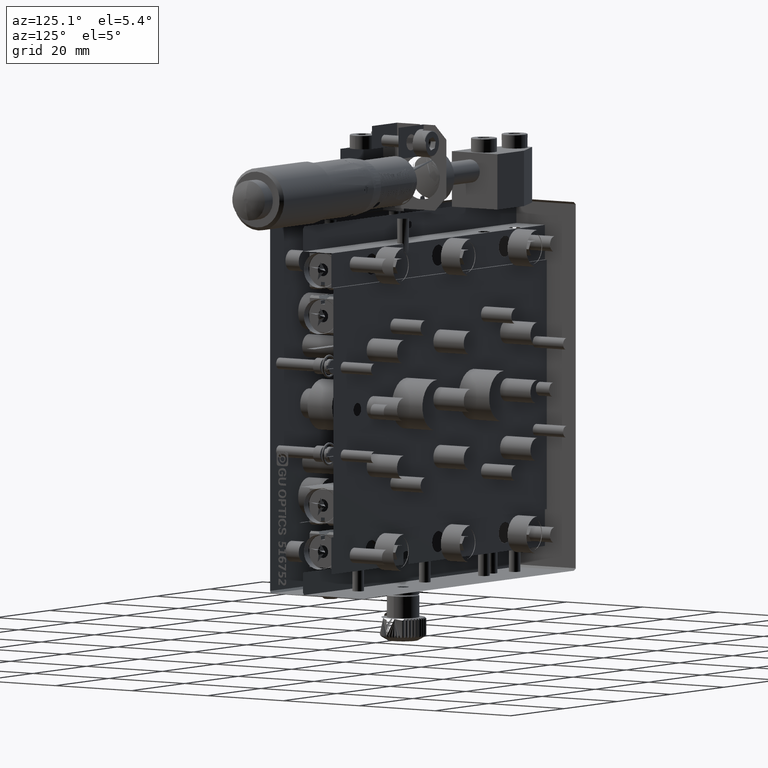
[diagram: clean part render]
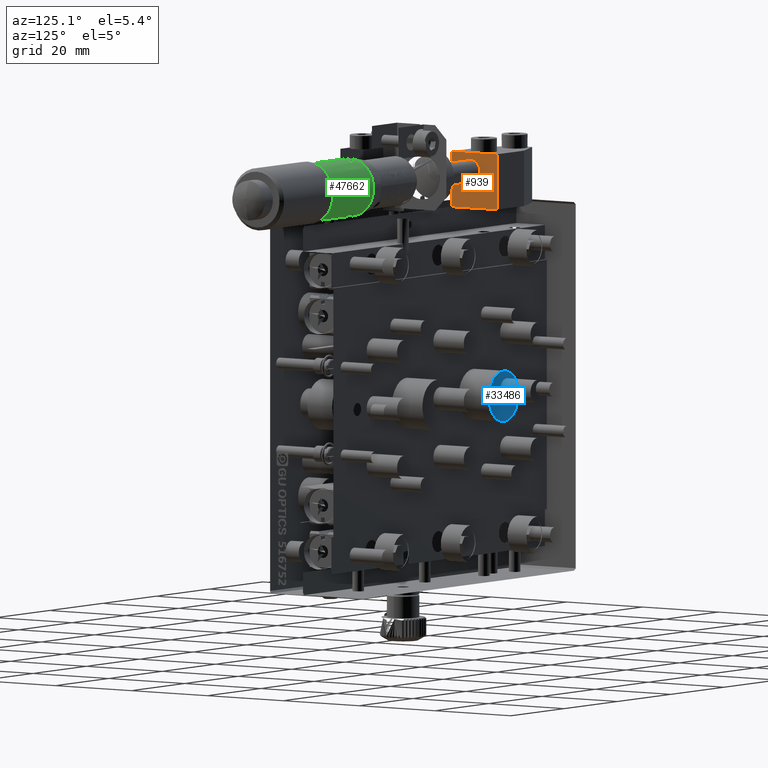
[diagram: same view with three faces highlighted in distinct colors, each labeled with its STEP entity id]
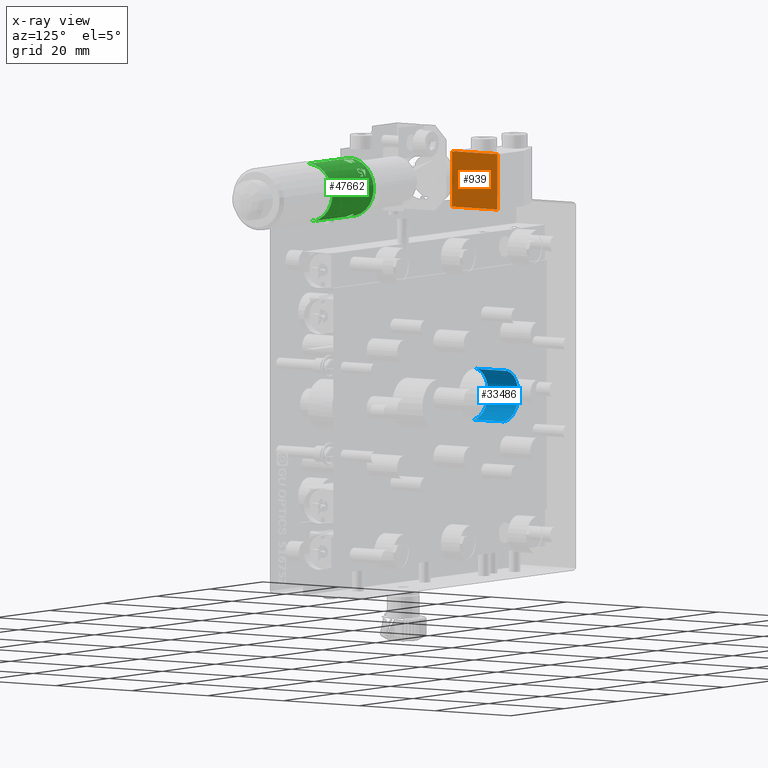
[diagram: x-ray of the same camera — body ghosted, the three highlighted faces saturated]
A machine part, auxiliary view with three faces highlighted in distinct colors.
The next image is the same camera in x-ray (body ghosted, the three faces saturated) — at least one of them is partly hidden behind the body in this view.
Their STEP definitions:

[orange] entity #939 — the highlighted planar face has unit normal (-1, -0, -0).
#939 = ADVANCED_FACE ( 'NONE', ( #50863 ), #3341, .F. ) ;
#1112 = CARTESIAN_POINT ( 'NONE',  ( -15.79999999999999900, 9.000000000000007100, 51.89999999999998400 ) ) ;
#1249 = LINE ( 'NONE', #62821, #2814 ) ;
#1841 = EDGE_CURVE ( 'NONE', #42631, #13104, #50801, .T. ) ;
#2753 = VECTOR ( 'NONE', #34329, 1000.000000000000000 ) ;
#2814 = VECTOR ( 'NONE', #59969, 1000.000000000000000 ) ;
#3341 = PLANE ( 'NONE',  #55455 ) ;
#3427 = CARTESIAN_POINT ( 'NONE',  ( -15.79999999999999900, 21.00000000000000400, 51.89999999999998400 ) ) ;
#3876 = EDGE_CURVE ( 'NONE', #13104, #39841, #1249, .T. ) ;
#4098 = DIRECTION ( 'NONE',  ( -1.000000000000000000, -3.534178953351299200E-018, -1.635266247514618900E-046 ) ) ;
#4270 = EDGE_CURVE ( 'NONE', #39570, #42631, #13688, .T. ) ;
#4552 = EDGE_CURVE ( 'NONE', #39841, #39570, #40799, .T. ) ;
#11234 = CARTESIAN_POINT ( 'NONE',  ( -15.79999999999999900, 21.00000000000000400, 51.89999999999998400 ) ) ;
#13104 = VERTEX_POINT ( 'NONE', #11234 ) ;
#13688 = LINE ( 'NONE', #54400, #51352 ) ;
#19224 = DIRECTION ( 'NONE',  ( -0.0000000000000000000, 1.000000000000000000, 5.226203497089203200E-030 ) ) ;
#19629 = ORIENTED_EDGE ( 'NONE', *, *, #4270, .F. ) ;
#21293 = ORIENTED_EDGE ( 'NONE', *, *, #4552, .F. ) ;
#27240 = DIRECTION ( 'NONE',  ( 3.534178953351299200E-018, -1.000000000000000000, 0.0000000000000000000 ) ) ;
#32768 = CARTESIAN_POINT ( 'NONE',  ( -15.79999999999999900, 9.000000000000007100, 39.89999999999999100 ) ) ;
#33832 = CARTESIAN_POINT ( 'NONE',  ( -15.79999999999999900, 21.00000000000000400, 39.89999999999999100 ) ) ;
#34329 = DIRECTION ( 'NONE',  ( 3.534178953351299200E-018, -1.000000000000000000, 0.0000000000000000000 ) ) ;
#38802 = ORIENTED_EDGE ( 'NONE', *, *, #1841, .F. ) ;
#39570 = VERTEX_POINT ( 'NONE', #32768 ) ;
#39841 = VERTEX_POINT ( 'NONE', #54193 ) ;
#39934 = ORIENTED_EDGE ( 'NONE', *, *, #3876, .F. ) ;
#40799 = LINE ( 'NONE', #33832, #2753 ) ;
#42631 = VERTEX_POINT ( 'NONE', #1112 ) ;
#49443 = CARTESIAN_POINT ( 'NONE',  ( -15.79999999999999900, 15.00000000000000700, 51.89999999999998400 ) ) ;
#50801 = LINE ( 'NONE', #49443, #62078 ) ;
#50863 = FACE_OUTER_BOUND ( 'NONE', #52009, .T. ) ;
#51352 = VECTOR ( 'NONE', #52238, 1000.000000000000000 ) ;
#52009 = EDGE_LOOP ( 'NONE', ( #39934, #38802, #19629, #21293 ) ) ;
#52238 = DIRECTION ( 'NONE',  ( -1.635266247514618900E-046, -5.779323555091922300E-064, 1.000000000000000000 ) ) ;
#54193 = CARTESIAN_POINT ( 'NONE',  ( -15.79999999999999900, 21.00000000000000400, 39.89999999999999100 ) ) ;
#54400 = CARTESIAN_POINT ( 'NONE',  ( -15.79999999999999900, 9.000000000000007100, 51.89999999999998400 ) ) ;
#55455 = AXIS2_PLACEMENT_3D ( 'NONE', #3427, #4098, #27240 ) ;
#59969 = DIRECTION ( 'NONE',  ( 1.635266247514618900E-046, 5.779323555091922300E-064, -1.000000000000000000 ) ) ;
#62078 = VECTOR ( 'NONE', #19224, 1000.000000000000000 ) ;
#62821 = CARTESIAN_POINT ( 'NONE',  ( -15.79999999999999900, 21.00000000000000400, 51.89999999999998400 ) ) ;

[blue] entity #33486 — the highlighted cylindrical surface (edge-blend (fillet) strip) has radius 5.5 mm, axis along (0, 1, 0).
#1544 = VERTEX_POINT ( 'NONE', #51170 ) ;
#3455 = DIRECTION ( 'NONE',  ( 0.0000000000000000000, 1.000000000000000000, 0.0000000000000000000 ) ) ;
#3535 = CARTESIAN_POINT ( 'NONE',  ( -12.50000000000000000, 15.00000000000000700, 5.499999999999996400 ) ) ;
#6759 = LINE ( 'NONE', #3535, #18398 ) ;
#8397 = VECTOR ( 'NONE', #31479, 1000.000000000000000 ) ;
#9328 = CIRCLE ( 'NONE', #40242, 5.500000000000000000 ) ;
#9446 = CIRCLE ( 'NONE', #40145, 5.500000000000000000 ) ;
#11076 = CARTESIAN_POINT ( 'NONE',  ( -12.50000000000000000, 17.00000000000000400, -5.500000000000003600 ) ) ;
#13055 = ORIENTED_EDGE ( 'NONE', *, *, #34024, .F. ) ;
#18398 = VECTOR ( 'NONE', #3455, 1000.000000000000000 ) ;
#18472 = CARTESIAN_POINT ( 'NONE',  ( -12.50000000000000000, 17.00000000000000400, -3.469446951953614200E-015 ) ) ;
#23473 = DIRECTION ( 'NONE',  ( 0.0000000000000000000, 0.0000000000000000000, 1.000000000000000000 ) ) ;
#24761 = CARTESIAN_POINT ( 'NONE',  ( -12.50000000000000000, 25.00000000000000400, -5.500000000000003600 ) ) ;
#25495 = FACE_OUTER_BOUND ( 'NONE', #55426, .T. ) ;
#31479 = DIRECTION ( 'NONE',  ( 0.0000000000000000000, 1.000000000000000000, 0.0000000000000000000 ) ) ;
#31544 = CARTESIAN_POINT ( 'NONE',  ( -12.50000000000000000, 15.00000000000000700, -5.500000000000003600 ) ) ;
#32744 = AXIS2_PLACEMENT_3D ( 'NONE', #44841, #45794, #44854 ) ;
#33486 = ADVANCED_FACE ( 'NONE', ( #25495 ), #50011, .T. ) ;
#33749 = ORIENTED_EDGE ( 'NONE', *, *, #59248, .T. ) ;
#34024 = EDGE_CURVE ( 'NONE', #58971, #45697, #46231, .T. ) ;
#34866 = EDGE_CURVE ( 'NONE', #47016, #1544, #6759, .T. ) ;
#38658 = EDGE_CURVE ( 'NONE', #45697, #1544, #9328, .T. ) ;
#40145 = AXIS2_PLACEMENT_3D ( 'NONE', #18472, #52792, #23473 ) ;
#40242 = AXIS2_PLACEMENT_3D ( 'NONE', #41026, #40937, #40861 ) ;
#40861 = DIRECTION ( 'NONE',  ( 0.0000000000000000000, 0.0000000000000000000, 1.000000000000000000 ) ) ;
#40937 = DIRECTION ( 'NONE',  ( 0.0000000000000000000, 1.000000000000000000, 0.0000000000000000000 ) ) ;
#41026 = CARTESIAN_POINT ( 'NONE',  ( -12.50000000000000000, 25.00000000000000400, -3.469446951953614200E-015 ) ) ;
#44841 = CARTESIAN_POINT ( 'NONE',  ( -12.50000000000000000, 15.00000000000000700, -3.469446951953614200E-015 ) ) ;
#44854 = DIRECTION ( 'NONE',  ( 0.0000000000000000000, 0.0000000000000000000, 1.000000000000000000 ) ) ;
#45697 = VERTEX_POINT ( 'NONE', #24761 ) ;
#45794 = DIRECTION ( 'NONE',  ( 0.0000000000000000000, 1.000000000000000000, 0.0000000000000000000 ) ) ;
#46231 = LINE ( 'NONE', #31544, #8397 ) ;
#47016 = VERTEX_POINT ( 'NONE', #50522 ) ;
#50011 = CYLINDRICAL_SURFACE ( 'NONE', #32744, 5.500000000000000000 ) ;
#50522 = CARTESIAN_POINT ( 'NONE',  ( -12.50000000000000000, 17.00000000000000400, 5.499999999999996400 ) ) ;
#51170 = CARTESIAN_POINT ( 'NONE',  ( -12.50000000000000000, 25.00000000000000400, 5.499999999999996400 ) ) ;
#52792 = DIRECTION ( 'NONE',  ( 0.0000000000000000000, 1.000000000000000000, 0.0000000000000000000 ) ) ;
#53830 = ORIENTED_EDGE ( 'NONE', *, *, #38658, .F. ) ;
#54413 = ORIENTED_EDGE ( 'NONE', *, *, #34866, .T. ) ;
#55426 = EDGE_LOOP ( 'NONE', ( #13055, #33749, #54413, #53830 ) ) ;
#58971 = VERTEX_POINT ( 'NONE', #11076 ) ;
#59248 = EDGE_CURVE ( 'NONE', #58971, #47016, #9446, .T. ) ;

[green] entity #47662 — the highlighted cylindrical surface (edge-blend (fillet) strip) has radius 6.25 mm, axis along (1, 0, 0).
#5 = CARTESIAN_POINT ( 'NONE',  ( 34.09101118349828100, 19.20881935076725700, 52.10988013386758400 ) ) ;
#27 = CARTESIAN_POINT ( 'NONE',  ( 32.36666666666666700, 19.33006119945233800, 51.95860250714125800 ) ) ;
#79 = CARTESIAN_POINT ( 'NONE',  ( 34.10489589065895200, 19.26094703554289800, 52.04937991767568700 ) ) ;
#144 = CARTESIAN_POINT ( 'NONE',  ( 32.59743589743590800, 15.80293721241997700, 54.10756740613569300 ) ) ;
#340 = CARTESIAN_POINT ( 'NONE',  ( 34.05429911060690500, 19.50478002641562000, 51.74366730837874000 ) ) ;
#443 = CARTESIAN_POINT ( 'NONE',  ( 32.36666666666666700, 19.87933797297719700, 51.21531347211509200 ) ) ;
#538 = CARTESIAN_POINT ( 'NONE',  ( 32.83302997727713500, 20.67649701706661200, 48.95584570687903200 ) ) ;
#567 = CARTESIAN_POINT ( 'NONE',  ( 34.11025641025641200, 19.32167643195503400, 51.96881107959666900 ) ) ;
#767 = CARTESIAN_POINT ( 'NONE',  ( 32.41336600207593200, 20.74299291015170300, 48.29628518175464800 ) ) ;
#778 = CARTESIAN_POINT ( 'NONE',  ( 33.24527243589743400, 19.68846716045614900, 51.47560549039560100 ) ) ;
#804 = VERTEX_POINT ( 'NONE', #15930 ) ;
#847 = CARTESIAN_POINT ( 'NONE',  ( 34.02373864285081600, 19.09019313422598400, 52.24195490184114700 ) ) ;
#890 = CARTESIAN_POINT ( 'NONE',  ( 33.35304487179487200, 19.96228525327885700, 51.02712153898919200 ) ) ;
#1307 = CARTESIAN_POINT ( 'NONE',  ( 34.13589743589744800, 16.32287865202283700, 53.97303427246146900 ) ) ;
#1388 = CARTESIAN_POINT ( 'NONE',  ( 34.13498785784283000, 16.39678811613943300, 53.95570589636327700 ) ) ;
#1395 = CARTESIAN_POINT ( 'NONE',  ( 34.13318512883415000, 16.45264030344692000, 53.93729295013251600 ) ) ;
#1475 = CARTESIAN_POINT ( 'NONE',  ( 34.13032075637372700, 16.49478995846021700, 53.92311741098576800 ) ) ;
#1528 = CARTESIAN_POINT ( 'NONE',  ( 34.12998758592284800, 16.49953931890655000, 53.92151643924152900 ) ) ;
#1543 = CARTESIAN_POINT ( 'NONE',  ( 34.12945689140855900, 16.50673542583756500, 53.91908163136390200 ) ) ;
#1605 = CARTESIAN_POINT ( 'NONE',  ( 34.12863181807136200, 16.51749695334129000, 53.91542949410919800 ) ) ;
#1685 = ORIENTED_EDGE ( 'NONE', *, *, #37957, .T. ) ;
#1687 = B_SPLINE_CURVE_WITH_KNOTS ( 'NONE', 3,
 ( #49500, #49017, #48938, #48864 ),
 .UNSPECIFIED., .F., .F.,
 ( 4, 4 ),
 ( 0.0000000000000000000, 1.000000000000000000 ),
 .UNSPECIFIED. ) ;
#1693 = CARTESIAN_POINT ( 'NONE',  ( 34.12650342599089700, 16.54237900892592700, 53.90690952335938800 ) ) ;
#1738 = CARTESIAN_POINT ( 'NONE',  ( 34.12143375798867600, 16.59123248369703400, 53.88988550601042200 ) ) ;
#1754 = CARTESIAN_POINT ( 'NONE',  ( 34.11569481311599400, 16.63155298535279400, 53.87535198808058800 ) ) ;
#1814 = CARTESIAN_POINT ( 'NONE',  ( 34.10902685813895400, 16.67084755314829900, 53.86089717358120100 ) ) ;
#1904 = CARTESIAN_POINT ( 'NONE',  ( 34.10600378404537700, 16.68705297294341200, 53.85487259926809100 ) ) ;
#1967 = CARTESIAN_POINT ( 'NONE',  ( 34.10005419899563600, 16.71567799248674600, 53.84410000716370300 ) ) ;
#2035 = CARTESIAN_POINT ( 'NONE',  ( 34.09042596212383100, 16.75793824864245700, 53.82801605502899600 ) ) ;
#2043 = CARTESIAN_POINT ( 'NONE',  ( 34.07868614736056400, 16.79817862843619000, 53.81219888260270800 ) ) ;
#2120 = ORIENTED_EDGE ( 'NONE', *, *, #26083, .T. ) ;
#2124 = CARTESIAN_POINT ( 'NONE',  ( 34.05239108064540000, 16.87599857248147100, 53.78102536061583500 ) ) ;
#2179 = VERTEX_POINT ( 'NONE', #3370 ) ;
#2255 = CARTESIAN_POINT ( 'NONE',  ( 34.03110711991708800, 16.92433088692339300, 53.76085979341613100 ) ) ;
#2268 = CARTESIAN_POINT ( 'NONE',  ( 33.99980977369229200, 16.98041991402718800, 53.73673828609431500 ) ) ;
#2297 = CARTESIAN_POINT ( 'NONE',  ( 32.18717948717948500, 19.09994841254147600, 52.23398668408514600 ) ) ;
#2345 = CARTESIAN_POINT ( 'NONE',  ( 33.99124387590608600, 16.99489799138617500, 53.73045929304026200 ) ) ;
#2409 = CARTESIAN_POINT ( 'NONE',  ( 33.97559468860095700, 17.01945647948555200, 53.71970442807955900 ) ) ;
#2425 = B_SPLINE_CURVE_WITH_KNOTS ( 'NONE', 3,
 ( #52420, #52501, #52287, #52208 ),
 .UNSPECIFIED., .F., .F.,
 ( 4, 4 ),
 ( 0.0000000000000000000, 1.000000000000000000 ),
 .UNSPECIFIED. ) ;
#2460 = CARTESIAN_POINT ( 'NONE',  ( 33.93076923076923600, 19.32650666289138600, 51.96293558275490900 ) ) ;
#2461 = ORIENTED_EDGE ( 'NONE', *, *, #55902, .T. ) ;
#2481 = CARTESIAN_POINT ( 'NONE',  ( 33.95129708736928400, 17.05515960021659800, 53.70392764286235400 ) ) ;
#2574 = CARTESIAN_POINT ( 'NONE',  ( 33.92965376818390400, 19.30426017547612400, 51.99790910600337700 ) ) ;
#2583 = CARTESIAN_POINT ( 'NONE',  ( 33.92686353123919200, 19.28290593525220900, 52.02330039924683500 ) ) ;
#2610 = CARTESIAN_POINT ( 'NONE',  ( 33.92452802531566600, 17.08748404696672600, 53.68928061709092200 ) ) ;
#2648 = CARTESIAN_POINT ( 'NONE',  ( 33.92128226710910600, 19.26252764006690300, 52.04732877131348800 ) ) ;
#2658 = CARTESIAN_POINT ( 'NONE',  ( 33.91920704807761000, 19.25572833018005900, 52.05531943386507300 ) ) ;
#2675 = CARTESIAN_POINT ( 'NONE',  ( 33.86769462011253800, 17.14769027638524400, 53.66164169950650400 ) ) ;
#2685 = CARTESIAN_POINT ( 'NONE',  ( 33.82541197518255400, 17.18190661969748600, 53.64542936859744100 ) ) ;
#2764 = ORIENTED_EDGE ( 'NONE', *, *, #35524, .T. ) ;
#2766 = CARTESIAN_POINT ( 'NONE',  ( 33.73205926906678800, 17.23877813507962400, 53.61805929119739000 ) ) ;
#2775 = CARTESIAN_POINT ( 'NONE',  ( 33.72773396602672600, 20.74296404084758200, 48.29649323083969400 ) ) ;
#2791 = CARTESIAN_POINT ( 'NONE',  ( 33.91542638277503100, 19.24503744178233000, 52.06782341519943500 ) ) ;
#2803 = CARTESIAN_POINT ( 'NONE',  ( 33.90916619137605900, 19.22918625784409100, 52.08628785947603700 ) ) ;
#2862 = ORIENTED_EDGE ( 'NONE', *, *, #57385, .T. ) ;
#2872 = CARTESIAN_POINT ( 'NONE',  ( 33.90113841964191000, 19.21390009128869600, 52.10388516491123300 ) ) ;
#2882 = CARTESIAN_POINT ( 'NONE',  ( 33.87045122422750900, 19.16424174573617000, 52.16064769191224600 ) ) ;
#2903 = CARTESIAN_POINT ( 'NONE',  ( 33.67902476628647400, 17.26157769792258300, 53.60682318475900800 ) ) ;
#2977 = CARTESIAN_POINT ( 'NONE',  ( 33.56797720848423700, 17.29143208755032600, 53.59201971629293800 ) ) ;
#2990 = CARTESIAN_POINT ( 'NONE',  ( 33.44193592596069200, 20.68981803967152200, 48.86585595156276400 ) ) ;
#3007 = CARTESIAN_POINT ( 'NONE',  ( 33.83310696351792800, 19.12713268866868400, 52.20172795207641100 ) ) ;
#3016 = CARTESIAN_POINT ( 'NONE',  ( 33.73416687094492500, 19.06105282559607500, 52.27336773797065200 ) ) ;
#3035 = CARTESIAN_POINT ( 'NONE',  ( 33.30247746276322100, 19.70110203104685800, 51.46569931536375000 ) ) ;
#3047 = CARTESIAN_POINT ( 'NONE',  ( 32.39464789699338400, 20.74770870611603600, 47.82102650226904900 ) ) ;
#3057 = CARTESIAN_POINT ( 'NONE',  ( 45.70000000000000300, 14.49999999999999800, 41.74999999999998600 ) ) ;
#3092 = CARTESIAN_POINT ( 'NONE',  ( 33.67850848043552500, 19.03523132729906200, 52.30055497066239700 ) ) ;
#3104 = CARTESIAN_POINT ( 'NONE',  ( 33.60353160841720000, 19.01414276712287700, 52.32262100391878300 ) ) ;
#3143 = ORIENTED_EDGE ( 'NONE', *, *, #24557, .T. ) ;
#3234 = CARTESIAN_POINT ( 'NONE',  ( 33.59045770833233000, 19.01107745595902500, 52.32581770712931000 ) ) ;
#3242 = CARTESIAN_POINT ( 'NONE',  ( 33.56046312780041800, 19.00509529235417000, 52.33204744385187700 ) ) ;
#3245 = CARTESIAN_POINT ( 'NONE',  ( 34.01845970089044600, 17.20990147451311700, 42.36804012404996900 ) ) ;
#3278 = CARTESIAN_POINT ( 'NONE',  ( 32.50273735505742000, 20.70826983196250000, 47.27894352542722300 ) ) ;
#3319 = CARTESIAN_POINT ( 'NONE',  ( 33.51354595095910600, 18.99742575463728400, 52.34001458564478800 ) ) ;
#3323 = ORIENTED_EDGE ( 'NONE', *, *, #36441, .T. ) ;
#3350 = CARTESIAN_POINT ( 'NONE',  ( 33.50867452892843100, 17.29927299731597000, 53.58807404077968800 ) ) ;
#3370 = CARTESIAN_POINT ( 'NONE',  ( 33.06097756410257200, 20.65322500782837500, 46.90440792124281400 ) ) ;
#3406 = CARTESIAN_POINT ( 'NONE',  ( 33.42315705128206100, 18.98936726000605200, 52.34115268157960100 ) ) ;
#3459 = CARTESIAN_POINT ( 'NONE',  ( 33.46085285598758900, 18.99369204205041900, 52.34387303397203800 ) ) ;
#3461 = CARTESIAN_POINT ( 'NONE',  ( 33.64544956152585800, 17.52586700888600300, 42.53129897818612200 ) ) ;
#3485 = CARTESIAN_POINT ( 'NONE',  ( 33.44559294871794500, 17.29783195164206000, 53.58320350429487200 ) ) ;
#3488 = CARTESIAN_POINT ( 'NONE',  ( 32.93881468912807300, 20.65490689640288100, 46.91378251536990300 ) ) ;
#3813 = CARTESIAN_POINT ( 'NONE',  ( 33.38242147443067900, 17.55367557588683200, 42.54678382380299700 ) ) ;
#3898 = CARTESIAN_POINT ( 'NONE',  ( 33.21282051282051400, 20.05867741411726600, 50.84624847927627700 ) ) ;
#3967 = B_SPLINE_CURVE_WITH_KNOTS ( 'NONE', 3,
 ( #48101, #52938, #23617, #57772 ),
 .UNSPECIFIED., .F., .F.,
 ( 4, 4 ),
 ( 0.0000000000000000000, 1.000000000000000000 ),
 .UNSPECIFIED. ) ;
#3981 = CARTESIAN_POINT ( 'NONE',  ( 33.00769230769230900, 19.53421879940362200, 51.69549267077219700 ) ) ;
#4014 = CARTESIAN_POINT ( 'NONE',  ( 33.59097930393522100, 20.70001064077498400, 47.21098304777910900 ) ) ;
#4041 = CARTESIAN_POINT ( 'NONE',  ( 33.02983744829502700, 17.40468419008272600, 42.46595599079001500 ) ) ;
#4050 = CARTESIAN_POINT ( 'NONE',  ( 33.14444444444443900, 19.91120646039084000, 51.14522745666119600 ) ) ;
#4225 = CARTESIAN_POINT ( 'NONE',  ( 33.74401643343823300, 20.74492064654514000, 47.74787666733637100 ) ) ;
#4239 = CARTESIAN_POINT ( 'NONE',  ( 33.82568470978607400, 15.71288829960135100, 41.86873541562120200 ) ) ;
#4253 = CARTESIAN_POINT ( 'NONE',  ( 32.80208887076251800, 16.94732467064671500, 42.24906487414073600 ) ) ;
#4460 = CARTESIAN_POINT ( 'NONE',  ( 34.10902691642820600, 16.25154333702403200, 42.00043416403176600 ) ) ;
#4524 = CARTESIAN_POINT ( 'NONE',  ( 34.03333333333333100, 19.96228525327885700, 51.02712153898919200 ) ) ;
#4550 = CARTESIAN_POINT ( 'NONE',  ( 32.88180102017152300, 15.96593215804863600, 41.92434533093315700 ) ) ;
#4602 = CARTESIAN_POINT ( 'NONE',  ( 34.13589743589744800, 16.32287865202283700, 53.97303427246146900 ) ) ;
#4762 = CARTESIAN_POINT ( 'NONE',  ( 33.32381434575172800, 15.59284800460591900, 41.84626687548194500 ) ) ;
#5275 = CARTESIAN_POINT ( 'NONE',  ( 34.07807900175541200, 19.17718120407163700, 52.14588062822164000 ) ) ;
#5386 = CARTESIAN_POINT ( 'NONE',  ( 34.08342163891705200, 19.45782236255520900, 51.80577384599536800 ) ) ;
#5397 = VERTEX_POINT ( 'NONE', #4602 ) ;
#5588 = CARTESIAN_POINT ( 'NONE',  ( 32.68527109421450700, 20.68964811768630000, 48.86706710923067500 ) ) ;
#5761 = B_SPLINE_CURVE_WITH_KNOTS ( 'NONE', 3,
 ( #40946, #55456, #6478, #41171 ),
 .UNSPECIFIED., .F., .F.,
 ( 4, 4 ),
 ( 0.0000000000000000000, 1.000000000000000000 ),
 .UNSPECIFIED. ) ;
#5794 = CARTESIAN_POINT ( 'NONE',  ( 32.40717517636670700, 20.74511094942684900, 48.24770052609885300 ) ) ;
#5882 = CARTESIAN_POINT ( 'NONE',  ( 33.94634737124824400, 19.01122783100381900, 52.32578175062727900 ) ) ;
#5917 = VECTOR ( 'NONE', #25026, 1000.000000000000000 ) ;
#6094 = DIRECTION ( 'NONE',  ( 1.000000000000000000, 0.0000000000000000000, 0.0000000000000000000 ) ) ;
#6478 = CARTESIAN_POINT ( 'NONE',  ( 31.96629273504273500, 19.84867501777720400, 51.27642869039148400 ) ) ;
#6517 = ORIENTED_EDGE ( 'NONE', *, *, #35697, .T. ) ;
#6533 = CARTESIAN_POINT ( 'NONE',  ( 33.21282051282051400, 20.05867741411726600, 50.84624847927627700 ) ) ;
#6646 = CARTESIAN_POINT ( 'NONE',  ( 32.18717948717948500, 19.19755995534211100, 52.11496724968330300 ) ) ;
#6683 = CARTESIAN_POINT ( 'NONE',  ( 34.10899684838488400, 19.29128770828656400, 52.01359768927510900 ) ) ;
#6752 = CARTESIAN_POINT ( 'NONE',  ( 31.87094017094017300, 19.20132101215183000, 52.11826185917063700 ) ) ;
#6946 = EDGE_CURVE ( 'NONE', #51065, #21943, #51974, .T. ) ;
#6988 = CARTESIAN_POINT ( 'NONE',  ( 33.07606837606837800, 19.73550014195837200, 51.42974479730852300 ) ) ;
#7274 = ORIENTED_EDGE ( 'NONE', *, *, #45256, .T. ) ;
#7464 = B_SPLINE_CURVE_WITH_KNOTS ( 'NONE', 3,
 ( #51731, #51870, #51921, #51597, #50809, #50893, #50822, #50603, #49703, #49660, #49454, #49171, #49307, #48622, #48481, #47390, #46699, #45815, #45613, #44798, #44306, #44096, #44169, #44109, #43839, #43635, #43550, #43488, #43145, #42714, #42726 ),
 .UNSPECIFIED., .F., .F.,
 ( 4, 2, 1, 1, 2, 2, 2, 1, 1, 2, 2, 2, 2, 2, 1, 2, 2, 4 ),
 ( 0.0000000000000000000, 0.1249999999999691400, 0.1874999999999517600, 0.2187499999999468200, 0.2343749999999423200, 0.2499999999999378300, 0.3749999999999466000, 0.4374999999999429300, 0.4687499999999438800, 0.4843749999999414400, 0.4999999999999390500, 0.6249999999999595900, 0.6874999999999700200, 0.7499999999999804600, 0.8124999999999909000, 0.8437499999999945600, 0.8749999999999984500, 1.000000000000000000 ),
 .UNSPECIFIED. ) ;
#7826 = CARTESIAN_POINT ( 'NONE',  ( 33.71652838613714900, 20.73959653093846700, 48.36610784952569700 ) ) ;
#7962 = CYLINDRICAL_SURFACE ( 'NONE', #29714, 6.249999999999998200 ) ;
#8030 = CARTESIAN_POINT ( 'NONE',  ( 33.18633331677764200, 20.67026278765487000, 48.99516862366535000 ) ) ;
#8057 = CARTESIAN_POINT ( 'NONE',  ( 34.12645387683194500, 16.80913961771650000, 42.19214049659567000 ) ) ;
#8072 = CARTESIAN_POINT ( 'NONE',  ( 33.34664871838123900, 19.70653226657058000, 51.45753163659105700 ) ) ;
#8087 = CARTESIAN_POINT ( 'NONE',  ( 32.40310611517336500, 20.74249060254615200, 47.69167600877163700 ) ) ;
#8279 = CARTESIAN_POINT ( 'NONE',  ( 34.00993550735236000, 17.22550575439497700, 42.37557382373304900 ) ) ;
#8305 = CARTESIAN_POINT ( 'NONE',  ( 32.53644809043671400, 20.70013925399004900, 47.21001418963914600 ) ) ;
#8450 = CARTESIAN_POINT ( 'NONE',  ( 32.78451355579991100, 16.39363929370717800, 42.04370256755910900 ) ) ;
#8490 = CARTESIAN_POINT ( 'NONE',  ( 33.50959522346526100, 17.55380181300793700, 42.54685454259599500 ) ) ;
#8516 = CARTESIAN_POINT ( 'NONE',  ( 33.06097756410257200, 20.65322500782837500, 46.90440792124281400 ) ) ;
#8552 = B_SPLINE_CURVE_WITH_KNOTS ( 'NONE', 3,
 ( #61583, #27583, #3035, #37754, #8072, #42730, #13047, #47524, #18048 ),
 .UNSPECIFIED., .F., .F.,
 ( 4, 1, 2, 2, 4 ),
 ( 0.0000000000000000000, 0.2499999999999587000, 0.3749999999999408300, 0.4999999999999229500, 1.000000000000000000 ),
 .UNSPECIFIED. ) ;
#8754 = CARTESIAN_POINT ( 'NONE',  ( 32.59743589743590800, 19.29058588004405900, 52.01465592705638100 ) ) ;
#8875 = CARTESIAN_POINT ( 'NONE',  ( 32.36666666666666700, 18.88115888439022400, 52.45033390092569200 ) ) ;
#9013 = CARTESIAN_POINT ( 'NONE',  ( 33.61519438907350800, 20.70524103181389800, 47.25325181611459900 ) ) ;
#9043 = CARTESIAN_POINT ( 'NONE',  ( 32.95703588275250000, 17.33040833513327100, 42.42746895419257700 ) ) ;
#9214 = ORIENTED_EDGE ( 'NONE', *, *, #26179, .F. ) ;
#9245 = CARTESIAN_POINT ( 'NONE',  ( 33.74537220130184100, 20.74564995097940600, 47.76682384793417700 ) ) ;
#9259 = CARTESIAN_POINT ( 'NONE',  ( 33.92498006468949300, 15.81489383739629400, 41.88984109803696800 ) ) ;
#9271 = CARTESIAN_POINT ( 'NONE',  ( 32.77775760772026100, 16.73306474080492400, 42.16081731352836900 ) ) ;
#9470 = CARTESIAN_POINT ( 'NONE',  ( 34.12142923553405200, 16.33266683018382200, 42.02460569736447100 ) ) ;
#9533 = FACE_OUTER_BOUND ( 'NONE', #15878, .T. ) ;
#9558 = CARTESIAN_POINT ( 'NONE',  ( 32.88957301884735100, 15.94952294454283000, 41.92040834451408700 ) ) ;
#9763 = CARTESIAN_POINT ( 'NONE',  ( 33.44559294871794500, 15.58346654826404500, 41.84462834275679900 ) ) ;
#9820 = ORIENTED_EDGE ( 'NONE', *, *, #27150, .F. ) ;
#9929 = CARTESIAN_POINT ( 'NONE',  ( 32.36666666666666700, 17.29783195164206300, 53.58320350429488600 ) ) ;
#10073 = CARTESIAN_POINT ( 'NONE',  ( 32.44358974358974700, 19.33392834212603600, 51.96177192468098800 ) ) ;
#10185 = CARTESIAN_POINT ( 'NONE',  ( 33.62896788857952400, 19.70605243767629500, 51.45825516326850400 ) ) ;
#10352 = CARTESIAN_POINT ( 'NONE',  ( 33.75128205128204000, 20.74980635989209100, 47.95080179015072700 ) ) ;
#10407 = CARTESIAN_POINT ( 'NONE',  ( 34.10574378684403700, 19.38450501542628100, 51.89942597197766400 ) ) ;
#10429 = CARTESIAN_POINT ( 'NONE',  ( 32.59743589743590800, 16.00265303118369100, 54.06152281756610000 ) ) ;
#10446 = CARTESIAN_POINT ( 'NONE',  ( 32.59743589743590800, 15.93518894426053700, 54.07309583590198100 ) ) ;
#10504 = CARTESIAN_POINT ( 'NONE',  ( 32.59743589743590800, 15.86865836249151900, 54.08843449702464300 ) ) ;
#10512 = CARTESIAN_POINT ( 'NONE',  ( 32.36666666666666700, 19.33006119945233800, 51.95860250714125800 ) ) ;
#10619 = CARTESIAN_POINT ( 'NONE',  ( 32.57418908410858200, 20.70530657024789200, 48.74729586342856900 ) ) ;
#10652 = CARTESIAN_POINT ( 'NONE',  ( 32.35451388888888900, 20.07737481990423200, 50.79830129155139000 ) ) ;
#10721 = CARTESIAN_POINT ( 'NONE',  ( 32.59743589743590800, 15.80293721241997700, 54.10756740613569300 ) ) ;
#10832 = CARTESIAN_POINT ( 'NONE',  ( 32.40224009920014900, 20.74688291931116500, 48.19904001843996600 ) ) ;
#10917 = CARTESIAN_POINT ( 'NONE',  ( 33.62251976595880600, 18.84941573600446700, 52.48832783783365800 ) ) ;
#11084 = FACE_BOUND ( 'NONE', #46036, .T. ) ;
#11112 = DIRECTION ( 'NONE',  ( 0.0000000000000000000, 0.0000000000000000000, -1.000000000000000000 ) ) ;
#11219 = ORIENTED_EDGE ( 'NONE', *, *, #42777, .T. ) ;
#11347 = CARTESIAN_POINT ( 'NONE',  ( 32.80256410256410500, 19.23116528165476400, 52.07628508297255400 ) ) ;
#11402 = CARTESIAN_POINT ( 'NONE',  ( 32.81601365736131700, 19.17828216636645400, 52.14532435606298600 ) ) ;
#11475 = CARTESIAN_POINT ( 'NONE',  ( 32.83680980612324200, 19.12936849878449400, 52.19939587559797900 ) ) ;
#11476 = CARTESIAN_POINT ( 'NONE',  ( 32.18717948717948500, 15.80293721241997700, 54.10756740613569300 ) ) ;
#11489 = CARTESIAN_POINT ( 'NONE',  ( 31.55470085470085800, 15.80189402810258900, 54.10267744023806800 ) ) ;
#11541 = CARTESIAN_POINT ( 'NONE',  ( 33.75982905982905900, 20.06312791645042300, 50.84852730111717300 ) ) ;
#11560 = CARTESIAN_POINT ( 'NONE',  ( 32.86847039169068600, 19.08432770853228200, 52.24811650158712700 ) ) ;
#11561 = CARTESIAN_POINT ( 'NONE',  ( 31.87094017094017300, 15.80189402810258900, 54.10267744023806800 ) ) ;
#11587 = CARTESIAN_POINT ( 'NONE',  ( 33.44559294871794500, 17.29783195164206000, 53.58320350429487200 ) ) ;
#11615 = CARTESIAN_POINT ( 'NONE',  ( 32.87331381482229600, 19.07776160281679600, 52.25519309832857600 ) ) ;
#11683 = CARTESIAN_POINT ( 'NONE',  ( 32.88222337023513100, 19.06638573067904800, 52.26739861683179800 ) ) ;
#11751 = CARTESIAN_POINT ( 'NONE',  ( 31.55470085470085800, 19.20132101215183000, 52.11826185917063700 ) ) ;
#11773 = CARTESIAN_POINT ( 'NONE',  ( 32.89613599279473300, 19.04951773318202200, 52.28542329484788100 ) ) ;
#11826 = CARTESIAN_POINT ( 'NONE',  ( 32.93243680484996400, 19.01155133591132100, 52.32551400791360400 ) ) ;
#11904 = CARTESIAN_POINT ( 'NONE',  ( 32.97013125989638400, 18.98146721397059600, 52.35656755712228300 ) ) ;
#11991 = CARTESIAN_POINT ( 'NONE',  ( 33.05429280103551500, 18.92474571798716100, 52.41441303117522200 ) ) ;
#12046 = CARTESIAN_POINT ( 'NONE',  ( 33.11810737975844200, 18.89554396180829300, 52.44324762946624900 ) ) ;
#12123 = CARTESIAN_POINT ( 'NONE',  ( 33.20677877181843500, 18.87100074151939900, 52.46731460512867800 ) ) ;
#12124 = CARTESIAN_POINT ( 'NONE',  ( 31.23846153846153900, 15.80293721241998000, 54.10756740613569300 ) ) ;
#12260 = CARTESIAN_POINT ( 'NONE',  ( 33.22310534751241600, 18.86726669348940500, 52.47096256183244400 ) ) ;
#12294 = CARTESIAN_POINT ( 'NONE',  ( 33.44559294871794500, 15.58346654826404500, 41.84462834275679900 ) ) ;
#12317 = ORIENTED_EDGE ( 'NONE', *, *, #36536, .T. ) ;
#12335 = CARTESIAN_POINT ( 'NONE',  ( 33.26013703812281400, 18.86016491849675000, 52.47788861907923800 ) ) ;
#12473 = CARTESIAN_POINT ( 'NONE',  ( 33.28010693193964200, 18.85708231670254200, 52.48088627321335800 ) ) ;
#12538 = CARTESIAN_POINT ( 'NONE',  ( 33.33079751454945200, 18.85095522851458200, 52.48683864557636300 ) ) ;
#12585 = CARTESIAN_POINT ( 'NONE',  ( 33.75128205128204000, 20.74980635989209100, 47.95080179015072700 ) ) ;
#12617 = VERTEX_POINT ( 'NONE', #30887 ) ;
#12791 = CARTESIAN_POINT ( 'NONE',  ( 33.67642241677922500, 20.72926614782501200, 48.50943377818110500 ) ) ;
#12890 = CARTESIAN_POINT ( 'NONE',  ( 33.41274038461539000, 18.84449625588059300, 52.48613166131349300 ) ) ;
#12955 = CARTESIAN_POINT ( 'NONE',  ( 33.36937637848472300, 18.84859747456299300, 52.48912026526048900 ) ) ;
#13028 = CARTESIAN_POINT ( 'NONE',  ( 34.11748917540031600, 16.88866602193248700, 42.22444505589184900 ) ) ;
#13047 = CARTESIAN_POINT ( 'NONE',  ( 33.39559960363892100, 19.71143608998491500, 51.45014062476127500 ) ) ;
#13058 = CARTESIAN_POINT ( 'NONE',  ( 32.41012722948137500, 20.73883058557376200, 47.62645904828962500 ) ) ;
#13098 = VERTEX_POINT ( 'NONE', #11587 ) ;
#13108 = B_SPLINE_CURVE_WITH_KNOTS ( 'NONE', 3,
 ( #48047, #3813, #18778, #53105, #23784, #57926, #28784, #62759, #33763, #4041, #38720, #9043, #43667, #14020, #48455, #18988, #53309, #23998, #58128, #29000, #62963, #33988, #4253, #38933, #9271, #43879 ),
 .UNSPECIFIED., .F., .F.,
 ( 4, 2, 2, 2, 2, 2, 2, 2, 2, 1, 1, 2, 2, 4 ),
 ( 0.0000000000000000000, 0.1249999999999899000, 0.1874999999999869000, 0.2499999999999839000, 0.3124999999999809000, 0.3749999999999779100, 0.4999999999999772400, 0.5624999999999772400, 0.5937499999999827900, 0.6249999999999882300, 0.6874999999999926700, 0.7187499999999983300, 0.7500000000000038900, 1.000000000000000000 ),
 .UNSPECIFIED. ) ;
#13203 = ORIENTED_EDGE ( 'NONE', *, *, #47360, .T. ) ;
#13244 = CARTESIAN_POINT ( 'NONE',  ( 33.94269105986892800, 17.32879003477123100, 42.42663648865221400 ) ) ;
#13274 = CARTESIAN_POINT ( 'NONE',  ( 32.62460656805711800, 20.68399843009624200, 47.09382473938356400 ) ) ;
#13386 = CARTESIAN_POINT ( 'NONE',  ( 33.44559294871794500, 15.29798209829558300, 54.19380735661028600 ) ) ;
#13402 = CARTESIAN_POINT ( 'NONE',  ( 32.79248298241311200, 16.30938012273889700, 42.01761473546996200 ) ) ;
#13449 = CARTESIAN_POINT ( 'NONE',  ( 33.57094870142822200, 15.30046538708505100, 54.19852874659182600 ) ) ;
#13464 = CARTESIAN_POINT ( 'NONE',  ( 33.68185776097714500, 15.33361958831497100, 54.19449707033399500 ) ) ;
#13465 = LINE ( 'NONE', #47328, #54180 ) ;
#13530 = B_SPLINE_CURVE_WITH_KNOTS ( 'NONE', 3,
 ( #32786, #56971, #37741, #8057, #42715, #13028, #47509, #18030, #52347, #23007, #57176, #28016, #61988, #32992, #3245, #37945, #8279, #42913, #13244, #47714, #18241, #52556, #23224, #57373, #28226, #62207, #33205, #3461, #38166, #8490, #43130 ),
 .UNSPECIFIED., .F., .F.,
 ( 4, 2, 1, 1, 2, 2, 2, 1, 1, 2, 2, 2, 1, 2, 2, 2, 2, 4 ),
 ( 0.0000000000000000000, 0.1250000000000448800, 0.1875000000000668100, 0.2187500000000808800, 0.2343750000000879000, 0.2500000000000949200, 0.3750000000001164600, 0.4375000000001297900, 0.4687500000001394400, 0.4843750000001442700, 0.5000000000001491000, 0.6250000000001476600, 0.6875000000001444400, 0.7187500000001346700, 0.7500000000001249000, 0.8125000000000932600, 0.8750000000000615100, 1.000000000000000000 ),
 .UNSPECIFIED. ) ;
#13542 = CARTESIAN_POINT ( 'NONE',  ( 33.82655131055842900, 15.43000052245006500, 54.18050587907998100 ) ) ;
#13596 = CARTESIAN_POINT ( 'NONE',  ( 33.86776395935979900, 15.46650431887243600, 54.17497387612974100 ) ) ;
#13613 = CARTESIAN_POINT ( 'NONE',  ( 33.94385269949740500, 15.55327992429400500, 54.16076572922252600 ) ) ;
#13677 = CARTESIAN_POINT ( 'NONE',  ( 33.97744537228038600, 15.60269760059812500, 54.15221352103749600 ) ) ;
#13693 = CARTESIAN_POINT ( 'NONE',  ( 34.01022896971465300, 15.66497287727347200, 54.14047129922234100 ) ) ;
#13829 = CARTESIAN_POINT ( 'NONE',  ( 34.01269273029971900, 15.66982075226592400, 54.13954855215354900 ) ) ;
#13901 = CARTESIAN_POINT ( 'NONE',  ( 34.01863100167869900, 15.68177175076464800, 54.13725936764750900 ) ) ;
#13916 = CARTESIAN_POINT ( 'NONE',  ( 34.03333333333333100, 20.05867741411726600, 50.84624847927627700 ) ) ;
#13982 = CARTESIAN_POINT ( 'NONE',  ( 34.02737029760395900, 15.69988176571006400, 54.13376329910986600 ) ) ;
#13996 = CARTESIAN_POINT ( 'NONE',  ( 33.66777569605012800, 20.71800702839579200, 47.36595581278740500 ) ) ;
#14020 = CARTESIAN_POINT ( 'NONE',  ( 32.88456178784913000, 17.21318211899836800, 42.36955671388964400 ) ) ;
#14035 = CARTESIAN_POINT ( 'NONE',  ( 34.04658521009371700, 15.74342027677509700, 54.12515819259459000 ) ) ;
#14047 = CARTESIAN_POINT ( 'NONE',  ( 34.06103780136629000, 15.78292644356802800, 54.11697468158764900 ) ) ;
#14063 = ORIENTED_EDGE ( 'NONE', *, *, #48102, .T. ) ;
#14106 = CARTESIAN_POINT ( 'NONE',  ( 34.08725320561990200, 15.86482464207261400, 54.09941568968317700 ) ) ;
#14113 = CARTESIAN_POINT ( 'NONE',  ( 32.36666666666666700, 15.34877564991583700, 54.18705138948350000 ) ) ;
#14119 = CARTESIAN_POINT ( 'NONE',  ( 34.10114377073368500, 15.92327320210685400, 54.08612300389629000 ) ) ;
#14176 = CARTESIAN_POINT ( 'NONE',  ( 32.30683760683760400, 15.34809608574456700, 54.18209778548872900 ) ) ;
#14203 = CARTESIAN_POINT ( 'NONE',  ( 33.74856974421354700, 20.74743916375768300, 47.81627295939510700 ) ) ;
#14217 = CARTESIAN_POINT ( 'NONE',  ( 33.97583212609238500, 15.88756814537072000, 41.90595916273120000 ) ) ;
#14243 = CARTESIAN_POINT ( 'NONE',  ( 34.11209197692075900, 15.98935548998634300, 54.06995356155172100 ) ) ;
#14257 = CARTESIAN_POINT ( 'NONE',  ( 34.11234935064208400, 15.99097161227361700, 54.06955615367745300 ) ) ;
#14310 = CARTESIAN_POINT ( 'NONE',  ( 34.11323206878405800, 15.99655011502344400, 54.06818308923459400 ) ) ;
#14389 = CARTESIAN_POINT ( 'NONE',  ( 32.18717948717947800, 15.34877564991583700, 54.18705138948350000 ) ) ;
#14427 = CARTESIAN_POINT ( 'NONE',  ( 34.12863000677034400, 16.40712622547833600, 42.04807007811250900 ) ) ;
#14454 = CARTESIAN_POINT ( 'NONE',  ( 34.11453747828897300, 16.00499302755218200, 54.06609887473956600 ) ) ;
#14462 = CARTESIAN_POINT ( 'NONE',  ( 32.24700854700854800, 15.34809608574456700, 54.18209778548872900 ) ) ;
#14468 = CARTESIAN_POINT ( 'NONE',  ( 34.11745275984421300, 16.02521865586912100, 54.06106116009039700 ) ) ;
#14493 = CARTESIAN_POINT ( 'NONE',  ( 33.35304487179487200, 19.96228525327885700, 51.02712153898919200 ) ) ;
#14517 = CARTESIAN_POINT ( 'NONE',  ( 32.95352702872249800, 15.83706555650306300, 41.89453396575837000 ) ) ;
#14546 = CARTESIAN_POINT ( 'NONE',  ( 34.12276062712991400, 16.06776680470025600, 54.05026925368362400 ) ) ;
#14674 = CARTESIAN_POINT ( 'NONE',  ( 34.12641417767503100, 16.10781320057021300, 54.03972636501747900 ) ) ;
#14687 = CARTESIAN_POINT ( 'NONE',  ( 34.13252654545137000, 16.19261656370833800, 54.01672507076076400 ) ) ;
#14695 = B_SPLINE_CURVE_WITH_KNOTS ( 'NONE', 3,
 ( #14834, #14883, #14687, #14674, #14546, #14468, #14454, #14310, #14257, #14243, #14119, #14106, #14047, #14035, #13982, #13901, #13829, #13693, #13677, #13613, #13596, #13542, #13464, #13449, #13386 ),
 .UNSPECIFIED., .F., .F.,
 ( 4, 2, 1, 1, 1, 2, 2, 2, 1, 1, 2, 2, 2, 2, 4 ),
 ( 0.0000000000000000000, 0.1249999999999449300, 0.1874999999999174000, 0.2187499999999076300, 0.2343749999999048800, 0.2421874999999034900, 0.2499999999999021300, 0.3749999999998456200, 0.4374999999998137000, 0.4687499999998006600, 0.4843749999998023800, 0.4999999999998040500, 0.6249999999998496800, 0.7499999999998953100, 1.000000000000000000 ),
 .UNSPECIFIED. ) ;
#14834 = CARTESIAN_POINT ( 'NONE',  ( 34.13589743589744800, 16.32287865202283700, 53.97303427246146900 ) ) ;
#14883 = CARTESIAN_POINT ( 'NONE',  ( 34.13500847955035800, 16.25543762585619600, 53.99884390284989900 ) ) ;
#14996 = CARTESIAN_POINT ( 'NONE',  ( 32.36666666666666700, 15.34877564991583700, 54.18705138948350000 ) ) ;
#15145 = CARTESIAN_POINT ( 'NONE',  ( 33.69081523152515000, 19.69698852763948300, 51.47186458882502100 ) ) ;
#15346 = VERTEX_POINT ( 'NONE', #44929 ) ;
#15372 = CARTESIAN_POINT ( 'NONE',  ( 34.11025641025641200, 19.32167643195503400, 51.96881107959666900 ) ) ;
#15583 = CARTESIAN_POINT ( 'NONE',  ( 32.50203305392365400, 20.71933850432423400, 48.61891692541096400 ) ) ;
#15800 = CARTESIAN_POINT ( 'NONE',  ( 32.39471505703311000, 20.74968738813625900, 48.08511268861768400 ) ) ;
#15878 = EDGE_LOOP ( 'NONE', ( #59377, #57282, #40115, #33481 ) ) ;
#15930 = CARTESIAN_POINT ( 'NONE',  ( 32.18717948717949200, 18.88115888439022400, 52.45033390092569200 ) ) ;
#15999 = DIRECTION ( 'NONE',  ( 0.0000000000000000000, 0.0000000000000000000, -1.000000000000000000 ) ) ;
#16093 = ORIENTED_EDGE ( 'NONE', *, *, #41931, .T. ) ;
#16141 = DIRECTION ( 'NONE',  ( 1.000000000000000000, 0.0000000000000000000, 0.0000000000000000000 ) ) ;
#16201 = CARTESIAN_POINT ( 'NONE',  ( 30.20000000000000300, 14.49999999999999800, 47.99999999999998600 ) ) ;
#16556 = CARTESIAN_POINT ( 'NONE',  ( 45.70000000000000300, 14.49999999999999800, 54.24999999999998600 ) ) ;
#16836 = B_SPLINE_CURVE_WITH_KNOTS ( 'NONE', 3,
 ( #12585, #51698, #51898, #22558, #56741, #27542, #61540, #32536, #2775, #37503, #7826, #42467, #12791, #47279, #17796, #52104, #22768, #56943, #27767, #61741, #32758, #2990, #37714, #8030, #42686 ),
 .UNSPECIFIED., .F., .F.,
 ( 4, 2, 1, 1, 1, 2, 2, 2, 1, 1, 2, 2, 2, 2, 4 ),
 ( 0.0000000000000000000, 0.1249999999998049100, 0.1874999999997005200, 0.2187499999996483100, 0.2343749999996310200, 0.2421874999996316000, 0.2499999999996322400, 0.3749999999996570500, 0.4374999999996694900, 0.4687499999996786500, 0.4843749999996832000, 0.4999999999996878100, 0.6249999999997648500, 0.7499999999998417900, 1.000000000000000000 ),
 .UNSPECIFIED. ) ;
#17094 = CARTESIAN_POINT ( 'NONE',  ( 32.18717948717948500, 18.99430100583306600, 52.34596676333598700 ) ) ;
#17264 = B_SPLINE_CURVE_WITH_KNOTS ( 'NONE', 3,
 ( #18975, #28772, #23986, #58116, #28988, #62955, #33973, #4239, #38918, #9259, #43866, #14217, #48649, #19182, #53502, #24190, #58321, #29195, #63156, #34184, #4460, #39127, #9470, #44073, #14427, #48847, #19396, #53703, #24386, #58525, #29413 ),
 .UNSPECIFIED., .F., .F.,
 ( 4, 2, 2, 2, 2, 1, 2, 2, 2, 1, 2, 2, 1, 1, 1, 2, 2, 4 ),
 ( 0.0000000000000000000, 0.06249999999999146500, 0.1249999999999829300, 0.2499999999999651100, 0.3749999999999473200, 0.4374999999999444300, 0.4687499999999377200, 0.4999999999999310000, 0.6249999999999360500, 0.6874999999999386000, 0.7187499999999381600, 0.7499999999999376100, 0.8124999999999416000, 0.8437499999999464900, 0.8593749999999468200, 0.8671874999999502600, 0.8749999999999538100, 1.000000000000000000 ),
 .UNSPECIFIED. ) ;
#17412 = CARTESIAN_POINT ( 'NONE',  ( 32.59743589743590800, 19.19755995534211100, 52.11496724968330300 ) ) ;
#17459 = CIRCLE ( 'NONE', #23603, 6.249999999999998200 ) ;
#17499 = ORIENTED_EDGE ( 'NONE', *, *, #54993, .T. ) ;
#17796 = CARTESIAN_POINT ( 'NONE',  ( 33.64275491300306000, 20.72174744476991000, 48.59382421194327200 ) ) ;
#17867 = B_SPLINE_CURVE_WITH_KNOTS ( 'NONE', 3,
 ( #33072, #32650, #32590, #32567 ),
 .UNSPECIFIED., .F., .F.,
 ( 4, 4 ),
 ( 0.0000000000000000000, 1.000000000000000000 ),
 .UNSPECIFIED. ) ;
#17869 = ORIENTED_EDGE ( 'NONE', *, *, #30100, .F. ) ;
#17950 = CARTESIAN_POINT ( 'NONE',  ( 32.30683760683760400, 18.88466661768437400, 52.45389701854052300 ) ) ;
#18030 = CARTESIAN_POINT ( 'NONE',  ( 34.11326978654017900, 16.91630466512645000, 42.23597302872600800 ) ) ;
#18048 = CARTESIAN_POINT ( 'NONE',  ( 33.48084935897436800, 19.70997785766667900, 51.44327688730123100 ) ) ;
#18060 = CARTESIAN_POINT ( 'NONE',  ( 32.41223214828440300, 20.73779323704035700, 47.60948685135574000 ) ) ;
#18102 = VERTEX_POINT ( 'NONE', #58628 ) ;
#18241 = CARTESIAN_POINT ( 'NONE',  ( 33.85564600051965600, 17.41439340949527500, 42.47103988680400700 ) ) ;
#18266 = CARTESIAN_POINT ( 'NONE',  ( 32.68590785929636400, 20.67528629502293900, 47.03631224140434600 ) ) ;
#18403 = CARTESIAN_POINT ( 'NONE',  ( 32.79629684977765400, 16.27891573026191800, 42.00850613438959200 ) ) ;
#18689 = CARTESIAN_POINT ( 'NONE',  ( 34.03333333333333100, 20.03196454084845600, 50.90938887148517700 ) ) ;
#18721 = CARTESIAN_POINT ( 'NONE',  ( 32.59743589743590800, 19.19755995534211100, 52.11496724968330300 ) ) ;
#18758 = CARTESIAN_POINT ( 'NONE',  ( 33.18336182379756100, 20.65493485456685400, 46.91392700850598600 ) ) ;
#18772 = ORIENTED_EDGE ( 'NONE', *, *, #22481, .T. ) ;
#18778 = CARTESIAN_POINT ( 'NONE',  ( 33.32423793333243400, 17.54624417517775100, 42.54260582527258800 ) ) ;
#18893 = CARTESIAN_POINT ( 'NONE',  ( 34.03333333333333100, 19.99980232222985400, 50.96973899579096900 ) ) ;
#18961 = CARTESIAN_POINT ( 'NONE',  ( 33.70581057752605900, 20.72948670747468500, 47.49250454804488400 ) ) ;
#18975 = CARTESIAN_POINT ( 'NONE',  ( 33.44559294871794500, 15.58346654826404500, 41.84462834275679900 ) ) ;
#18988 = CARTESIAN_POINT ( 'NONE',  ( 32.85476921414520700, 17.14587460894088600, 42.33766138479619900 ) ) ;
#19117 = B_SPLINE_CURVE_WITH_KNOTS ( 'NONE', 3,
 ( #50342, #50673, #50261, #50187 ),
 .UNSPECIFIED., .F., .F.,
 ( 4, 4 ),
 ( 0.0000000000000000000, 1.000000000000000000 ),
 .UNSPECIFIED. ) ;
#19169 = CARTESIAN_POINT ( 'NONE',  ( 33.75128205128204000, 20.74980635989209100, 47.95080179015072700 ) ) ;
#19182 = CARTESIAN_POINT ( 'NONE',  ( 33.99973861389155900, 15.92879686005849600, 41.91549567715225100 ) ) ;
#19253 = CARTESIAN_POINT ( 'NONE',  ( 32.44358974358974700, 19.20132101215183000, 52.11826185917063700 ) ) ;
#19396 = CARTESIAN_POINT ( 'NONE',  ( 34.12998707784428400, 16.42518973504989800, 42.05389548180037500 ) ) ;
#19485 = CARTESIAN_POINT ( 'NONE',  ( 33.02883867314032800, 15.75202454415732100, 41.87666022234569900 ) ) ;
#19572 = CARTESIAN_POINT ( 'NONE',  ( 32.36666666666666700, 20.08184387024068900, 50.80054352015039100 ) ) ;
#19887 = EDGE_CURVE ( 'NONE', #51065, #52445, #33889, .T. ) ;
#20003 = CARTESIAN_POINT ( 'NONE',  ( 32.59743589743590100, 19.33006119945233800, 51.95860250714124400 ) ) ;
#20110 = CARTESIAN_POINT ( 'NONE',  ( 33.80838361296525800, 19.67099487060589500, 51.51060403429201500 ) ) ;
#20228 = B_SPLINE_CURVE_WITH_KNOTS ( 'NONE', 3,
 ( #30601, #30675, #30863, #26080 ),
 .UNSPECIFIED., .F., .F.,
 ( 4, 4 ),
 ( 0.0000000000000000000, 1.000000000000000000 ),
 .UNSPECIFIED. ) ;
#20230 = CARTESIAN_POINT ( 'NONE',  ( 33.41274038461539000, 18.84449625588059300, 52.48613166131349300 ) ) ;
#20263 = ORIENTED_EDGE ( 'NONE', *, *, #23448, .T. ) ;
#20507 = B_SPLINE_CURVE_WITH_KNOTS ( 'NONE', 3,
 ( #52272, #51646, #51594, #51578 ),
 .UNSPECIFIED., .F., .F.,
 ( 4, 4 ),
 ( 0.0000000000000000000, 1.000000000000000000 ),
 .UNSPECIFIED. ) ;
#20530 = CARTESIAN_POINT ( 'NONE',  ( 32.47240844908698400, 20.72614117420534500, 48.54579353261968300 ) ) ;
#20689 = VERTEX_POINT ( 'NONE', #17412 ) ;
#20709 = VERTEX_POINT ( 'NONE', #16556 ) ;
#20760 = CARTESIAN_POINT ( 'NONE',  ( 32.39230769230768900, 20.74980635989209100, 47.95080179015072700 ) ) ;
#20836 = VERTEX_POINT ( 'NONE', #12294 ) ;
#20938 = ORIENTED_EDGE ( 'NONE', *, *, #48906, .T. ) ;
#21139 = EDGE_CURVE ( 'NONE', #52445, #20709, #17459, .T. ) ;
#21481 = ORIENTED_EDGE ( 'NONE', *, *, #39076, .T. ) ;
#21911 = EDGE_CURVE ( 'NONE', #21943, #20709, #26769, .T. ) ;
#21943 = VERTEX_POINT ( 'NONE', #45020 ) ;
#22310 = VERTEX_POINT ( 'NONE', #35181 ) ;
#22481 = EDGE_CURVE ( 'NONE', #35295, #63223, #20228, .T. ) ;
#22558 = CARTESIAN_POINT ( 'NONE',  ( 33.74179879306034000, 20.74759028838193200, 48.17599272919926500 ) ) ;
#22597 = EDGE_CURVE ( 'NONE', #27347, #35295, #42984, .T. ) ;
#22605 = B_SPLINE_CURVE_WITH_KNOTS ( 'NONE', 3,
 ( #6533, #41226, #11541, #46058 ),
 .UNSPECIFIED., .F., .F.,
 ( 4, 4 ),
 ( 0.0000000000000000000, 1.000000000000000000 ),
 .UNSPECIFIED. ) ;
#22697 = FACE_BOUND ( 'NONE', #60600, .T. ) ;
#22768 = CARTESIAN_POINT ( 'NONE',  ( 33.62807734568890800, 20.71874584108357800, 48.62428934052123000 ) ) ;
#23007 = CARTESIAN_POINT ( 'NONE',  ( 34.10145093899416200, 16.98521585207545600, 42.26500232567661200 ) ) ;
#23038 = CARTESIAN_POINT ( 'NONE',  ( 32.43416621383600800, 20.72833425656874700, 47.47704310462101100 ) ) ;
#23067 = CARTESIAN_POINT ( 'NONE',  ( 32.33020833333334600, 17.29783195164206300, 53.58320350429488600 ) ) ;
#23082 = ORIENTED_EDGE ( 'NONE', *, *, #31501, .F. ) ;
#23115 = CARTESIAN_POINT ( 'NONE',  ( 32.59743589743590800, 16.00265303118369100, 54.06152281756610000 ) ) ;
#23137 = CARTESIAN_POINT ( 'NONE',  ( 31.96629273504273500, 16.82631369693631400, 53.82508145801076400 ) ) ;
#23140 = ORIENTED_EDGE ( 'NONE', *, *, #34845, .T. ) ;
#23183 = CARTESIAN_POINT ( 'NONE',  ( 32.77731644885416500, 16.53621682418927800, 42.09061562223436000 ) ) ;
#23224 = CARTESIAN_POINT ( 'NONE',  ( 33.80114602125667700, 17.45293214822596200, 42.49157339358280400 ) ) ;
#23251 = CARTESIAN_POINT ( 'NONE',  ( 32.75565579469608200, 20.66747617790941800, 46.98757007089893300 ) ) ;
#23288 = CARTESIAN_POINT ( 'NONE',  ( 31.60237713675213900, 16.32223319272514700, 54.00189766660054900 ) ) ;
#23398 = CARTESIAN_POINT ( 'NONE',  ( 32.80654234543816000, 16.20513941633653200, 41.98675143865749200 ) ) ;
#23448 = EDGE_CURVE ( 'NONE', #63223, #27347, #13465, .T. ) ;
#23469 = VERTEX_POINT ( 'NONE', #46930 ) ;
#23592 = VERTEX_POINT ( 'NONE', #42597 ) ;
#23603 = AXIS2_PLACEMENT_3D ( 'NONE', #42041, #41827, #41816 ) ;
#23617 = CARTESIAN_POINT ( 'NONE',  ( 33.28119658119658200, 19.79020937087783600, 51.33270632678868100 ) ) ;
#23757 = CARTESIAN_POINT ( 'NONE',  ( 33.34744388451098000, 20.66492700720715100, 46.97181185165212700 ) ) ;
#23784 = CARTESIAN_POINT ( 'NONE',  ( 33.21888318537075700, 17.51662004862721000, 42.52618407512105800 ) ) ;
#23837 = B_SPLINE_CURVE_WITH_KNOTS ( 'NONE', 3,
 ( #61628, #62566, #61488, #61444, #61428, #61366, #61294, #61240, #61226, #61163, #61086, #61026, #61008, #60947, #60880, #60818, #60804, #60745, #60673, #60611 ),
 .UNSPECIFIED., .F., .F.,
 ( 4, 2, 1, 2, 2, 1, 2, 2, 2, 2, 4 ),
 ( 0.0000000000000000000, 0.1249999999999167300, 0.1874999999998751000, 0.2187499999998670800, 0.2499999999998590600, 0.3749999999998779300, 0.4374999999998762700, 0.4999999999998745400, 0.7499999999999353900, 0.8749999999999676900, 1.000000000000000000 ),
 .UNSPECIFIED. ) ;
#23931 = CARTESIAN_POINT ( 'NONE',  ( 31.23846153846153900, 15.80293721241998000, 54.10756740613569300 ) ) ;
#23935 = B_SPLINE_CURVE_WITH_KNOTS ( 'NONE', 3,
 ( #4524, #34248, #44134, #14493 ),
 .UNSPECIFIED., .F., .F.,
 ( 4, 4 ),
 ( 0.0000000000000000000, 1.000000000000000000 ),
 .UNSPECIFIED. ) ;
#23968 = VERTEX_POINT ( 'NONE', #23115 ) ;
#23973 = CARTESIAN_POINT ( 'NONE',  ( 33.72138839943626500, 20.73507791500563600, 47.56810041221348900 ) ) ;
#23986 = CARTESIAN_POINT ( 'NONE',  ( 33.50818536880904500, 15.58565574929339100, 41.84501285940493200 ) ) ;
#23998 = CARTESIAN_POINT ( 'NONE',  ( 32.84308869449403500, 17.11411262392794800, 42.32293570785091000 ) ) ;
#24084 = CARTESIAN_POINT ( 'NONE',  ( 33.42315705128206100, 18.98936726000605200, 52.34115268157960100 ) ) ;
#24190 = CARTESIAN_POINT ( 'NONE',  ( 34.05252395506221300, 16.04019581810991800, 41.94249058019581600 ) ) ;
#24209 = CARTESIAN_POINT ( 'NONE',  ( 32.98205128205129500, 19.23116528165476400, 52.07628508297255400 ) ) ;
#24220 = CARTESIAN_POINT ( 'NONE',  ( 32.92222222222223100, 19.23495324425016100, 52.07954872195010400 ) ) ;
#24354 = CARTESIAN_POINT ( 'NONE',  ( 32.86239316239316800, 19.23495324425016100, 52.07954872195010400 ) ) ;
#24386 = CARTESIAN_POINT ( 'NONE',  ( 34.13318498398430700, 16.47224854689522600, 42.06919172766271900 ) ) ;
#24390 = CARTESIAN_POINT ( 'NONE',  ( 32.33020833333334600, 17.29783195164206300, 53.58320350429488600 ) ) ;
#24457 = EDGE_CURVE ( 'NONE', #13098, #5397, #61195, .T. ) ;
#24478 = CARTESIAN_POINT ( 'NONE',  ( 33.09072795855988900, 15.69931247114644200, 41.86612439649430700 ) ) ;
#24492 = VERTEX_POINT ( 'NONE', #890 ) ;
#24501 = CARTESIAN_POINT ( 'NONE',  ( 32.80256410256410500, 19.23116528165476400, 52.07628508297255400 ) ) ;
#24557 = EDGE_CURVE ( 'NONE', #12617, #13098, #7464, .T. ) ;
#24622 = VERTEX_POINT ( 'NONE', #24723 ) ;
#24653 = B_SPLINE_CURVE_WITH_KNOTS ( 'NONE', 3,
 ( #12124, #11489, #11561, #11476 ),
 .UNSPECIFIED., .F., .F.,
 ( 4, 4 ),
 ( 0.0000000000000000000, 1.000000000000000000 ),
 .UNSPECIFIED. ) ;
#24723 = CARTESIAN_POINT ( 'NONE',  ( 32.59743589743590100, 19.33006119945233800, 51.95860250714124400 ) ) ;
#24734 = ORIENTED_EDGE ( 'NONE', *, *, #32185, .F. ) ;
#24918 = CARTESIAN_POINT ( 'NONE',  ( 33.52967328544586700, 19.71358297458844400, 51.44689042785301300 ) ) ;
#25026 = DIRECTION ( 'NONE',  ( 1.000000000000000000, 0.0000000000000000000, 0.0000000000000000000 ) ) ;
#25119 = CARTESIAN_POINT ( 'NONE',  ( 33.96715313501176300, 19.58987402006915300, 51.62720859195572100 ) ) ;
#25199 = ORIENTED_EDGE ( 'NONE', *, *, #45168, .T. ) ;
#25335 = EDGE_CURVE ( 'NONE', #54389, #12617, #62999, .T. ) ;
#25404 = VERTEX_POINT ( 'NONE', #34205 ) ;
#25521 = ORIENTED_EDGE ( 'NONE', *, *, #39839, .T. ) ;
#25543 = CARTESIAN_POINT ( 'NONE',  ( 32.46010502609184600, 20.72920819842634200, 48.50952799655062400 ) ) ;
#25585 = CARTESIAN_POINT ( 'NONE',  ( 32.33020833333332400, 20.08184387024068600, 50.80054352015038400 ) ) ;
#25870 = CARTESIAN_POINT ( 'NONE',  ( 32.18717948717948500, 15.80293721241997700, 54.10756740613569300 ) ) ;
#26080 = CARTESIAN_POINT ( 'NONE',  ( 31.66354166666667100, 15.63393512363997200, 41.85372542629474400 ) ) ;
#26083 = EDGE_CURVE ( 'NONE', #5397, #54389, #14695, .T. ) ;
#26179 = EDGE_CURVE ( 'NONE', #31400, #49982, #24653, .T. ) ;
#26769 = LINE ( 'NONE', #45641, #39961 ) ;
#26909 = CARTESIAN_POINT ( 'NONE',  ( 33.44839743589744800, 19.59418222628238100, 51.61238597680654300 ) ) ;
#26988 = CARTESIAN_POINT ( 'NONE',  ( 33.52072562856292100, 19.59733030185602200, 51.61659043598205400 ) ) ;
#27000 = CARTESIAN_POINT ( 'NONE',  ( 33.58126482753963400, 19.59241561477946900, 51.62353981796432800 ) ) ;
#27049 = CARTESIAN_POINT ( 'NONE',  ( 33.63610880848853000, 19.58232693531755300, 51.63764437997166100 ) ) ;
#27126 = CARTESIAN_POINT ( 'NONE',  ( 33.64545542365370100, 19.58049154435297000, 51.64020786984186600 ) ) ;
#27137 = CARTESIAN_POINT ( 'NONE',  ( 33.66047264136576400, 19.57726392143823100, 51.64470832028605700 ) ) ;
#27150 = EDGE_CURVE ( 'NONE', #49982, #30031, #20507, .T. ) ;
#27212 = CARTESIAN_POINT ( 'NONE',  ( 33.68257529481969900, 19.57215072591154100, 51.65182842532608000 ) ) ;
#27223 = CARTESIAN_POINT ( 'NONE',  ( 33.73118594108010600, 19.55830669143491500, 51.67102007501419100 ) ) ;
#27239 = CARTESIAN_POINT ( 'NONE',  ( 69.20000000000003100, 15.83501211860795300, 41.89424512093958700 ) ) ;
#27319 = DIRECTION ( 'NONE',  ( -1.000000000000000000, -0.0000000000000000000, -0.0000000000000000000 ) ) ;
#27347 = VERTEX_POINT ( 'NONE', #47650 ) ;
#27353 = CARTESIAN_POINT ( 'NONE',  ( 33.76777413193389800, 19.54311963778070500, 51.69185995380512800 ) ) ;
#27361 = CARTESIAN_POINT ( 'NONE',  ( 33.80097693787477200, 19.52564612101632600, 51.71557229322527900 ) ) ;
#27432 = CARTESIAN_POINT ( 'NONE',  ( 33.81330276961471500, 19.51848726099135700, 51.72524069967620600 ) ) ;
#27442 = CARTESIAN_POINT ( 'NONE',  ( 33.83432894027167500, 19.50472314045753200, 51.74371192089156300 ) ) ;
#27542 = CARTESIAN_POINT ( 'NONE',  ( 33.73283737522918100, 20.74455808897286200, 48.26124434541538500 ) ) ;
#27561 = CARTESIAN_POINT ( 'NONE',  ( 33.86350093319381900, 19.48329105701043700, 51.77231338147488800 ) ) ;
#27569 = CARTESIAN_POINT ( 'NONE',  ( 33.88557113692616000, 19.45945448086642300, 51.80356190631204800 ) ) ;
#27583 = CARTESIAN_POINT ( 'NONE',  ( 33.26964402050062100, 19.69636575578869000, 51.47279832412669300 ) ) ;
#27586 = B_SPLINE_CURVE_WITH_KNOTS ( 'NONE', 3,
 ( #31473, #6752, #11751, #46269 ),
 .UNSPECIFIED., .F., .F.,
 ( 4, 4 ),
 ( 0.0000000000000000000, 1.000000000000000000 ),
 .UNSPECIFIED. ) ;
#27643 = CARTESIAN_POINT ( 'NONE',  ( 33.90290681453191700, 19.43394567364073600, 51.83651835265978700 ) ) ;
#27653 = CARTESIAN_POINT ( 'NONE',  ( 33.90706709458831400, 19.42653207971368400, 51.84603342648377800 ) ) ;
#27767 = CARTESIAN_POINT ( 'NONE',  ( 33.59282998767741900, 20.71180110279243500, 48.69224292423134400 ) ) ;
#27783 = CARTESIAN_POINT ( 'NONE',  ( 33.91514935812445200, 19.40945480718327000, 51.86780880425902800 ) ) ;
#27789 = CARTESIAN_POINT ( 'NONE',  ( 33.92541617770645200, 19.38266938335879900, 51.90173938001031900 ) ) ;
#27824 = CARTESIAN_POINT ( 'NONE',  ( 32.39230769230768900, 20.74980635989209100, 47.95080179015072700 ) ) ;
#27924 = CARTESIAN_POINT ( 'NONE',  ( 32.18717948717949200, 18.88115888439022400, 52.45033390092569200 ) ) ;
#28002 = CARTESIAN_POINT ( 'NONE',  ( 33.93076923076923600, 19.32650666289138600, 51.96293558275490900 ) ) ;
#28014 = CARTESIAN_POINT ( 'NONE',  ( 33.93011327012187200, 19.35229545239319300, 51.93940636750241400 ) ) ;
#28016 = CARTESIAN_POINT ( 'NONE',  ( 34.06135364409703200, 17.11588557830804900, 42.32369648914902900 ) ) ;
#28038 = B_SPLINE_CURVE_WITH_KNOTS ( 'NONE', 3,
 ( #51422, #17094, #2297, #37027 ),
 .UNSPECIFIED., .F., .F.,
 ( 4, 4 ),
 ( 0.0000000000000000000, 1.000000000000000000 ),
 .UNSPECIFIED. ) ;
#28047 = CARTESIAN_POINT ( 'NONE',  ( 32.47120306056906000, 20.71654436577311000, 47.35329288495801600 ) ) ;
#28186 = AXIS2_PLACEMENT_3D ( 'NONE', #16201, #16141, #15999 ) ;
#28226 = CARTESIAN_POINT ( 'NONE',  ( 33.75300274488515100, 17.48144603736687900, 42.50693548676738200 ) ) ;
#28249 = CARTESIAN_POINT ( 'NONE',  ( 32.83373925750666400, 20.66095443968159300, 46.94873000685291200 ) ) ;
#28394 = CARTESIAN_POINT ( 'NONE',  ( 32.84256531024247700, 16.06592629207406400, 41.94928452859557700 ) ) ;
#28495 = EDGE_CURVE ( 'NONE', #30031, #53521, #50547, .T. ) ;
#28630 = ORIENTED_EDGE ( 'NONE', *, *, #44349, .T. ) ;
#28699 = B_SPLINE_CURVE_WITH_KNOTS ( 'NONE', 3,
 ( #45399, #55445, #45682, #44990 ),
 .UNSPECIFIED., .F., .F.,
 ( 4, 4 ),
 ( 0.0000000000000000000, 1.000000000000000000 ),
 .UNSPECIFIED. ) ;
#28756 = CARTESIAN_POINT ( 'NONE',  ( 33.48307923540763700, 20.68080888493306100, 47.07153241241899600 ) ) ;
#28772 = CARTESIAN_POINT ( 'NONE',  ( 33.48110216921972400, 15.58408943336946500, 41.84473798279361000 ) ) ;
#28784 = CARTESIAN_POINT ( 'NONE',  ( 33.14127139753237100, 17.48189125302827300, 42.50717779205111700 ) ) ;
#28976 = CARTESIAN_POINT ( 'NONE',  ( 33.73107942847743600, 20.73893012555715400, 47.62713272922032100 ) ) ;
#28988 = CARTESIAN_POINT ( 'NONE',  ( 33.59142829914795000, 15.59946227882898000, 41.84745931996736300 ) ) ;
#29000 = CARTESIAN_POINT ( 'NONE',  ( 32.81859789813645300, 17.03088705123234100, 42.28523237490443900 ) ) ;
#29195 = CARTESIAN_POINT ( 'NONE',  ( 34.09055421258369000, 16.16286669623795200, 41.97514217705509800 ) ) ;
#29261 = EDGE_CURVE ( 'NONE', #53521, #29856, #2425, .T. ) ;
#29413 = CARTESIAN_POINT ( 'NONE',  ( 34.13589743589744100, 16.59941987496059900, 42.11315566804925900 ) ) ;
#29501 = CARTESIAN_POINT ( 'NONE',  ( 33.16595005788972400, 15.65199630740220900, 41.85707202249685100 ) ) ;
#29714 = AXIS2_PLACEMENT_3D ( 'NONE', #45655, #6094, #11112 ) ;
#29856 = VERTEX_POINT ( 'NONE', #36916 ) ;
#30031 = VERTEX_POINT ( 'NONE', #34586 ) ;
#30100 = EDGE_CURVE ( 'NONE', #29856, #34981, #17867, .T. ) ;
#30117 = CARTESIAN_POINT ( 'NONE',  ( 34.03595365208600000, 19.52766751643883200, 51.71287319643136000 ) ) ;
#30322 = CARTESIAN_POINT ( 'NONE',  ( 32.93956486775657300, 20.67151804513019200, 48.98748237241191100 ) ) ;
#30538 = CARTESIAN_POINT ( 'NONE',  ( 32.42514560932002600, 20.73908385445625800, 48.37451144064326100 ) ) ;
#30601 = CARTESIAN_POINT ( 'NONE',  ( 31.54615384615385000, 15.83501211860795300, 41.89424512093958700 ) ) ;
#30618 = CARTESIAN_POINT ( 'NONE',  ( 34.04524937513818400, 19.11967504384682600, 52.20986373751497200 ) ) ;
#30675 = CARTESIAN_POINT ( 'NONE',  ( 31.58528311965812200, 15.76821411651225100, 41.87963986015481800 ) ) ;
#30830 = EDGE_CURVE ( 'NONE', #34981, #23968, #38207, .T. ) ;
#30863 = CARTESIAN_POINT ( 'NONE',  ( 31.62441239316239500, 15.70117641812153100, 41.86613087038242800 ) ) ;
#30887 = CARTESIAN_POINT ( 'NONE',  ( 32.77692307692307600, 16.32287865202283700, 53.97303427246145400 ) ) ;
#31400 = VERTEX_POINT ( 'NONE', #56638 ) ;
#31473 = CARTESIAN_POINT ( 'NONE',  ( 32.18717948717948500, 19.19755995534211100, 52.11496724968330300 ) ) ;
#31501 = EDGE_CURVE ( 'NONE', #23968, #39983, #28699, .T. ) ;
#32185 = EDGE_CURVE ( 'NONE', #39983, #40315, #19117, .T. ) ;
#32521 = B_SPLINE_CURVE_WITH_KNOTS ( 'NONE', 3,
 ( #3981, #6988, #4050, #3898 ),
 .UNSPECIFIED., .F., .F.,
 ( 4, 4 ),
 ( 0.0000000000000000000, 1.000000000000000000 ),
 .UNSPECIFIED. ) ;
#32536 = CARTESIAN_POINT ( 'NONE',  ( 33.72861668416874200, 20.74323393983334500, 48.29075457651215000 ) ) ;
#32559 = VERTEX_POINT ( 'NONE', #38617 ) ;
#32567 = CARTESIAN_POINT ( 'NONE',  ( 32.59743589743590800, 15.80293721241997700, 54.10756740613569300 ) ) ;
#32590 = CARTESIAN_POINT ( 'NONE',  ( 32.52051282051282800, 15.80189402810258900, 54.10267744023806800 ) ) ;
#32626 = B_SPLINE_CURVE_WITH_KNOTS ( 'NONE', 3,
 ( #49346, #24918, #39852, #10185, #44765, #15145, #49558, #20110, #54405, #25119, #59214, #30117, #340, #35109, #5386, #40072, #10407, #44967, #15372 ),
 .UNSPECIFIED., .F., .F.,
 ( 4, 2, 2, 2, 2, 1, 2, 2, 2, 4 ),
 ( 0.0000000000000000000, 0.1249999999999954500, 0.1874999999999819300, 0.2499999999999684100, 0.4999999999999670800, 0.6249999999999745800, 0.6874999999999862300, 0.7499999999999980000, 0.8749999999999990000, 1.000000000000000000 ),
 .UNSPECIFIED. ) ;
#32627 = ORIENTED_EDGE ( 'NONE', *, *, #34291, .T. ) ;
#32650 = CARTESIAN_POINT ( 'NONE',  ( 32.44358974358974700, 15.80189402810258900, 54.10267744023806800 ) ) ;
#32758 = CARTESIAN_POINT ( 'NONE',  ( 33.48314857476306400, 20.69489448392536000, 48.82928601960646400 ) ) ;
#32786 = CARTESIAN_POINT ( 'NONE',  ( 34.13589743589744100, 16.59941987496059900, 42.11315566804925900 ) ) ;
#32814 = CARTESIAN_POINT ( 'NONE',  ( 32.39270106292940500, 20.74927814725612100, 47.88370124519605000 ) ) ;
#32992 = CARTESIAN_POINT ( 'NONE',  ( 34.02732805633153400, 17.19306678153168400, 42.35994980627128800 ) ) ;
#33016 = CARTESIAN_POINT ( 'NONE',  ( 32.49718944239018700, 20.70965684915390200, 47.29098761524556200 ) ) ;
#33048 = CARTESIAN_POINT ( 'NONE',  ( 32.59743589743590100, 19.33006119945233800, 51.95860250714124400 ) ) ;
#33072 = CARTESIAN_POINT ( 'NONE',  ( 32.36666666666666700, 15.80293721241997700, 54.10756740613569300 ) ) ;
#33138 = CARTESIAN_POINT ( 'NONE',  ( 34.03333333333333100, 20.05867741411726600, 50.84624847927627700 ) ) ;
#33205 = CARTESIAN_POINT ( 'NONE',  ( 33.67422195917859500, 17.51625646375394400, 42.52598373145359300 ) ) ;
#33236 = CARTESIAN_POINT ( 'NONE',  ( 32.87558717417508800, 20.65827467317722800, 46.93315019442265200 ) ) ;
#33314 = EDGE_CURVE ( 'NONE', #40315, #60505, #1687, .T. ) ;
#33481 = ORIENTED_EDGE ( 'NONE', *, *, #19887, .F. ) ;
#33563 = CARTESIAN_POINT ( 'NONE',  ( 32.98205128205129500, 19.23116528165476400, 52.07628508297255400 ) ) ;
#33606 = ORIENTED_EDGE ( 'NONE', *, *, #46252, .T. ) ;
#33607 = CARTESIAN_POINT ( 'NONE',  ( 32.36666666666666700, 19.09994841254147600, 52.23398668408514600 ) ) ;
#33737 = CARTESIAN_POINT ( 'NONE',  ( 33.56668170267558100, 20.69503754344928500, 47.17226757170933400 ) ) ;
#33763 = CARTESIAN_POINT ( 'NONE',  ( 33.06999750741913900, 17.43696661766956500, 42.48302071540194900 ) ) ;
#33889 = LINE ( 'NONE', #36778, #5917 ) ;
#33961 = CARTESIAN_POINT ( 'NONE',  ( 33.74188804134510600, 20.74382775665282000, 47.72159906877188700 ) ) ;
#33973 = CARTESIAN_POINT ( 'NONE',  ( 33.73164947949725000, 15.65067720506406900, 41.85675611743167200 ) ) ;
#33988 = CARTESIAN_POINT ( 'NONE',  ( 32.80476256428485700, 16.96262106016410000, 42.25559175333618400 ) ) ;
#34151 = CARTESIAN_POINT ( 'NONE',  ( 33.48084935897436800, 19.70997785766667900, 51.44327688730123100 ) ) ;
#34184 = CARTESIAN_POINT ( 'NONE',  ( 34.10604981655214400, 16.23523161065235200, 41.99569311084383100 ) ) ;
#34205 = CARTESIAN_POINT ( 'NONE',  ( 33.93076923076923600, 19.32650666289138600, 51.96293558275490900 ) ) ;
#34248 = CARTESIAN_POINT ( 'NONE',  ( 33.80657051282050700, 19.96665858014296900, 51.02954517512928600 ) ) ;
#34263 = CARTESIAN_POINT ( 'NONE',  ( 32.87364902696573700, 15.98380360496171100, 41.92866622519601800 ) ) ;
#34291 = EDGE_CURVE ( 'NONE', #31400, #60505, #37066, .T. ) ;
#34467 = CARTESIAN_POINT ( 'NONE',  ( 33.24737792874975600, 15.61610167117424000, 41.85045700138273600 ) ) ;
#34586 = CARTESIAN_POINT ( 'NONE',  ( 32.18717948717947800, 15.34877564991583700, 54.18705138948350000 ) ) ;
#34713 = CARTESIAN_POINT ( 'NONE',  ( 31.23846153846154300, 19.19755995534211100, 52.11496724968330300 ) ) ;
#34736 = CARTESIAN_POINT ( 'NONE',  ( 32.33020833333332400, 20.08184387024068600, 50.80054352015038400 ) ) ;
#34845 = EDGE_CURVE ( 'NONE', #38554, #35409, #32521, .T. ) ;
#34981 = VERTEX_POINT ( 'NONE', #144 ) ;
#35075 = CARTESIAN_POINT ( 'NONE',  ( 32.77692307692307600, 16.32287865202283700, 53.97303427246145400 ) ) ;
#35109 = CARTESIAN_POINT ( 'NONE',  ( 34.06312679177978700, 19.49193572761500400, 51.76077544899180100 ) ) ;
#35131 = CARTESIAN_POINT ( 'NONE',  ( 32.77733942429497900, 16.25711429527869400, 53.99833220900093500 ) ) ;
#35146 = CARTESIAN_POINT ( 'NONE',  ( 32.77933044164876000, 16.19553791975938900, 54.01589459530752900 ) ) ;
#35181 = CARTESIAN_POINT ( 'NONE',  ( 34.11025641025641200, 19.32167643195503400, 51.96881107959666900 ) ) ;
#35221 = CARTESIAN_POINT ( 'NONE',  ( 32.78467897265234400, 16.11192806235989700, 54.03862749940536500 ) ) ;
#35273 = CARTESIAN_POINT ( 'NONE',  ( 32.78685548381565700, 16.08551618825819000, 54.04560183549104100 ) ) ;
#35295 = VERTEX_POINT ( 'NONE', #56139 ) ;
#35322 = CARTESIAN_POINT ( 'NONE',  ( 32.78103890807957300, 20.68032854603365700, 48.93117573839128200 ) ) ;
#35353 = CARTESIAN_POINT ( 'NONE',  ( 32.79071075180384300, 16.04811254420609500, 54.05524676083491200 ) ) ;
#35369 = CARTESIAN_POINT ( 'NONE',  ( 32.79179056098090000, 16.03836057825616400, 54.05773992942483400 ) ) ;
#35409 = VERTEX_POINT ( 'NONE', #53388 ) ;
#35435 = CARTESIAN_POINT ( 'NONE',  ( 32.79580085297269700, 16.00670513079999300, 54.06569088975869200 ) ) ;
#35524 = EDGE_CURVE ( 'NONE', #62627, #38554, #37901, .T. ) ;
#35533 = CARTESIAN_POINT ( 'NONE',  ( 32.41118546835456000, 20.74373226274207800, 48.28031010055730100 ) ) ;
#35561 = CARTESIAN_POINT ( 'NONE',  ( 32.79798138669563900, 15.99117928197968300, 54.06952467118524900 ) ) ;
#35572 = CARTESIAN_POINT ( 'NONE',  ( 32.80976099394570900, 15.91507073932667300, 54.08802110416942100 ) ) ;
#35617 = CARTESIAN_POINT ( 'NONE',  ( 33.97455589300209800, 19.03631229095956100, 52.29952615966441000 ) ) ;
#35644 = CARTESIAN_POINT ( 'NONE',  ( 32.82504835573686100, 15.84504904520888500, 54.10383456086707100 ) ) ;
#35697 = EDGE_CURVE ( 'NONE', #25404, #62627, #57334, .T. ) ;
#35769 = CARTESIAN_POINT ( 'NONE',  ( 32.84472041070444000, 15.78281963648541700, 54.11694591596640400 ) ) ;
#35783 = CARTESIAN_POINT ( 'NONE',  ( 32.85294000814556600, 15.75855350522365600, 54.12198469722848400 ) ) ;
#35851 = CARTESIAN_POINT ( 'NONE',  ( 32.85702383369046900, 15.74717906107226100, 54.12431783066551100 ) ) ;
#35892 = FACE_BOUND ( 'NONE', #51325, .T. ) ;
#35976 = CARTESIAN_POINT ( 'NONE',  ( 32.87415325557138600, 15.70311160841193800, 54.13318191995342200 ) ) ;
#35989 = CARTESIAN_POINT ( 'NONE',  ( 32.88664843853375400, 15.67513991466191000, 54.13858907020978300 ) ) ;
#36057 = CARTESIAN_POINT ( 'NONE',  ( 32.92736069254619500, 15.59548714954088700, 54.15348082575324900 ) ) ;
#36184 = CARTESIAN_POINT ( 'NONE',  ( 32.36666666666666700, 18.88115888439022400, 52.45033390092569200 ) ) ;
#36185 = CARTESIAN_POINT ( 'NONE',  ( 32.95880446872155300, 15.54807055704833700, 54.16164173298864900 ) ) ;
#36200 = CARTESIAN_POINT ( 'NONE',  ( 33.03029656807309100, 15.46477436460204100, 54.17523207366861000 ) ) ;
#36270 = CARTESIAN_POINT ( 'NONE',  ( 33.06988647880912400, 15.42879104457949600, 54.18068737182169800 ) ) ;
#36343 = CARTESIAN_POINT ( 'NONE',  ( 33.16565429268837300, 15.36467882430827600, 54.18998220704067800 ) ) ;
#36394 = CARTESIAN_POINT ( 'NONE',  ( 33.21764536188121800, 15.33993774492143400, 54.19332390577530800 ) ) ;
#36408 = CARTESIAN_POINT ( 'NONE',  ( 33.32418025235268300, 15.30819128021400600, 54.19754655261076700 ) ) ;
#36441 = EDGE_CURVE ( 'NONE', #57432, #25404, #62595, .T. ) ;
#36536 = EDGE_CURVE ( 'NONE', #57814, #57432, #23837, .T. ) ;
#36778 = CARTESIAN_POINT ( 'NONE',  ( 69.20000000000003100, 14.49999999999999800, 41.74999999999998600 ) ) ;
#36816 = CARTESIAN_POINT ( 'NONE',  ( 33.44559294871794500, 15.29798209829558300, 54.19380735661028600 ) ) ;
#36895 = CARTESIAN_POINT ( 'NONE',  ( 33.38240696621967600, 15.29970610812478100, 54.19862656865554800 ) ) ;
#36916 = CARTESIAN_POINT ( 'NONE',  ( 32.36666666666666700, 15.80293721241997700, 54.10756740613569300 ) ) ;
#37027 = CARTESIAN_POINT ( 'NONE',  ( 32.18717948717948500, 19.19755995534211100, 52.11496724968330300 ) ) ;
#37031 = ORIENTED_EDGE ( 'NONE', *, *, #54179, .T. ) ;
#37066 = B_SPLINE_CURVE_WITH_KNOTS ( 'NONE', 3,
 ( #23931, #23288, #23137, #23067 ),
 .UNSPECIFIED., .F., .F.,
 ( 4, 4 ),
 ( 0.0000000000000000000, 1.000000000000000000 ),
 .UNSPECIFIED. ) ;
#37162 = ORIENTED_EDGE ( 'NONE', *, *, #56574, .T. ) ;
#37503 = CARTESIAN_POINT ( 'NONE',  ( 33.72747659230415000, 20.74288548890242000, 48.29815564290902300 ) ) ;
#37527 = CARTESIAN_POINT ( 'NONE',  ( 32.36666666666666700, 19.19755995534211100, 52.11496724968330300 ) ) ;
#37714 = CARTESIAN_POINT ( 'NONE',  ( 33.29724237632656500, 20.67582514519737600, 48.96223663843500200 ) ) ;
#37741 = CARTESIAN_POINT ( 'NONE',  ( 34.13255898734760100, 16.72734108372920800, 42.16006140115329300 ) ) ;
#37754 = CARTESIAN_POINT ( 'NONE',  ( 33.32972500306246400, 19.70453345587098300, 51.46053966421251100 ) ) ;
#37768 = CARTESIAN_POINT ( 'NONE',  ( 32.39989834325279400, 20.74439137081411700, 47.73368194683003900 ) ) ;
#37901 = B_SPLINE_CURVE_WITH_KNOTS ( 'NONE', 3,
 ( #51300, #51421, #51218, #51171, #51160, #51088, #51080, #51007, #50964, #50954 ),
 .UNSPECIFIED., .F., .F.,
 ( 4, 1, 1, 2, 2, 4 ),
 ( 0.0000000000000000000, 0.2500000000000723900, 0.3750000000001076400, 0.4375000000000998100, 0.5000000000000919300, 1.000000000000000000 ),
 .UNSPECIFIED. ) ;
#37945 = CARTESIAN_POINT ( 'NONE',  ( 34.01243002519693400, 17.22101256389914400, 42.37339990109637000 ) ) ;
#37956 = ORIENTED_EDGE ( 'NONE', *, *, #24457, .T. ) ;
#37957 = EDGE_CURVE ( 'NONE', #32559, #57814, #60587, .T. ) ;
#37969 = B_SPLINE_CURVE_WITH_KNOTS ( 'NONE', 3,
 ( #42415, #17950, #57098, #27924 ),
 .UNSPECIFIED., .F., .F.,
 ( 4, 4 ),
 ( 0.0000000000000000000, 1.000000000000000000 ),
 .UNSPECIFIED. ) ;
#37976 = CARTESIAN_POINT ( 'NONE',  ( 32.50495578545382400, 20.70772257737604600, 47.27423693067528600 ) ) ;
#38124 = CARTESIAN_POINT ( 'NONE',  ( 32.77926324006476500, 16.47681314015017100, 42.07057293472424000 ) ) ;
#38166 = CARTESIAN_POINT ( 'NONE',  ( 33.56755966101066200, 17.54652522427123900, 42.54276332346758900 ) ) ;
#38192 = CARTESIAN_POINT ( 'NONE',  ( 32.99639631810703800, 20.65341910384588100, 46.90549803177937300 ) ) ;
#38207 = B_SPLINE_CURVE_WITH_KNOTS ( 'NONE', 3,
 ( #10721, #10504, #10446, #10429 ),
 .UNSPECIFIED., .F., .F.,
 ( 4, 4 ),
 ( 0.0000000000000000000, 1.000000000000000000 ),
 .UNSPECIFIED. ) ;
#38502 = VERTEX_POINT ( 'NONE', #47640 ) ;
#38554 = VERTEX_POINT ( 'NONE', #45602 ) ;
#38574 = CARTESIAN_POINT ( 'NONE',  ( 32.36666666666666700, 18.99430100583306600, 52.34596676333598700 ) ) ;
#38617 = CARTESIAN_POINT ( 'NONE',  ( 32.80256410256410500, 19.23116528165476400, 52.07628508297255400 ) ) ;
#38695 = CARTESIAN_POINT ( 'NONE',  ( 33.60662849126270400, 20.70333817398468000, 47.23758594202414000 ) ) ;
#38720 = CARTESIAN_POINT ( 'NONE',  ( 33.01083149769091600, 17.38716393100505900, 42.45678452200138500 ) ) ;
#38743 = VERTEX_POINT ( 'NONE', #36184 ) ;
#38905 = CARTESIAN_POINT ( 'NONE',  ( 33.74484150678247800, 20.74536191235769100, 47.75923245290719900 ) ) ;
#38918 = CARTESIAN_POINT ( 'NONE',  ( 33.86814015419108200, 15.75008188830419300, 41.87613310758820300 ) ) ;
#38933 = CARTESIAN_POINT ( 'NONE',  ( 32.78553302623997500, 16.84484934485427100, 42.20569547439881600 ) ) ;
#38979 = FACE_BOUND ( 'NONE', #49263, .T. ) ;
#39076 = EDGE_CURVE ( 'NONE', #58401, #32559, #46955, .T. ) ;
#39127 = CARTESIAN_POINT ( 'NONE',  ( 34.11569172778827400, 16.29165695844355700, 42.01224228365725800 ) ) ;
#39147 = EDGE_LOOP ( 'NONE', ( #2862, #37162, #2461, #17499 ) ) ;
#39191 = EDGE_CURVE ( 'NONE', #22310, #58401, #56616, .T. ) ;
#39210 = CARTESIAN_POINT ( 'NONE',  ( 32.88734879129985700, 15.95414330651379400, 41.92151301770941500 ) ) ;
#39428 = CARTESIAN_POINT ( 'NONE',  ( 33.38139308385202500, 15.58454815280295100, 41.84481872644143200 ) ) ;
#39839 = EDGE_CURVE ( 'NONE', #56923, #22310, #32626, .T. ) ;
#39852 = CARTESIAN_POINT ( 'NONE',  ( 33.57280590865607900, 19.71149273808991300, 51.45005601016441700 ) ) ;
#39961 = VECTOR ( 'NONE', #45490, 1000.000000000000000 ) ;
#39983 = VERTEX_POINT ( 'NONE', #56048 ) ;
#40072 = CARTESIAN_POINT ( 'NONE',  ( 34.09410646828158100, 19.43104145255858800, 51.84040913833504000 ) ) ;
#40115 = ORIENTED_EDGE ( 'NONE', *, *, #21139, .F. ) ;
#40176 = CARTESIAN_POINT ( 'NONE',  ( 32.36666666666666700, 19.62648996117940200, 51.60480490864706100 ) ) ;
#40280 = CARTESIAN_POINT ( 'NONE',  ( 32.64568118346888800, 20.69465009960191200, 48.83101797920448200 ) ) ;
#40315 = VERTEX_POINT ( 'NONE', #9929 ) ;
#40490 = CARTESIAN_POINT ( 'NONE',  ( 32.40609536718846300, 20.74549373353130500, 48.23764218596807000 ) ) ;
#40576 = CARTESIAN_POINT ( 'NONE',  ( 33.78996314652128800, 18.89771840578970700, 52.44292714096413000 ) ) ;
#40631 = ORIENTED_EDGE ( 'NONE', *, *, #50826, .T. ) ;
#40946 = CARTESIAN_POINT ( 'NONE',  ( 31.23846153846154300, 19.19755995534211100, 52.11496724968330300 ) ) ;
#41171 = CARTESIAN_POINT ( 'NONE',  ( 32.33020833333332400, 20.08184387024068600, 50.80054352015038400 ) ) ;
#41180 = EDGE_CURVE ( 'NONE', #56052, #56923, #8552, .T. ) ;
#41226 = CARTESIAN_POINT ( 'NONE',  ( 33.48632478632478600, 20.06312791645042300, 50.84852730111717300 ) ) ;
#41251 = B_SPLINE_CURVE_WITH_KNOTS ( 'NONE', 3,
 ( #13916, #18689, #18893, #53221 ),
 .UNSPECIFIED., .F., .F.,
 ( 4, 4 ),
 ( 0.0000000000000000000, 1.000000000000000000 ),
 .UNSPECIFIED. ) ;
#41363 = ORIENTED_EDGE ( 'NONE', *, *, #28495, .F. ) ;
#41448 = VECTOR ( 'NONE', #27319, 1000.000000000000000 ) ;
#41722 = ORIENTED_EDGE ( 'NONE', *, *, #48184, .T. ) ;
#41816 = DIRECTION ( 'NONE',  ( 0.0000000000000000000, 0.0000000000000000000, -1.000000000000000000 ) ) ;
#41826 = ORIENTED_EDGE ( 'NONE', *, *, #41835, .T. ) ;
#41827 = DIRECTION ( 'NONE',  ( 1.000000000000000000, 0.0000000000000000000, 0.0000000000000000000 ) ) ;
#41835 = EDGE_CURVE ( 'NONE', #24492, #56052, #3967, .T. ) ;
#41931 = EDGE_CURVE ( 'NONE', #15346, #24492, #23935, .T. ) ;
#42041 = CARTESIAN_POINT ( 'NONE',  ( 45.70000000000000300, 14.49999999999999800, 47.99999999999998600 ) ) ;
#42398 = ORIENTED_EDGE ( 'NONE', *, *, #41180, .T. ) ;
#42415 = CARTESIAN_POINT ( 'NONE',  ( 32.36666666666666700, 18.88115888439022400, 52.45033390092569200 ) ) ;
#42467 = CARTESIAN_POINT ( 'NONE',  ( 33.70263782103285900, 20.73572027008055600, 48.42592343498397200 ) ) ;
#42571 = B_SPLINE_CURVE_WITH_KNOTS ( 'NONE', 3,
 ( #47674, #23183, #38124, #8450, #43092, #13402, #47891, #18403, #52720, #23398, #57549, #28394, #62380, #34263, #4550, #39210, #9558, #44150, #14517, #48929, #19485, #53782, #24478, #58601, #29501, #63435, #34467, #4762, #39428, #9763 ),
 .UNSPECIFIED., .F., .F.,
 ( 4, 2, 1, 1, 2, 2, 2, 1, 1, 2, 2, 2, 2, 2, 2, 2, 4 ),
 ( 0.0000000000000000000, 0.1250000000000606200, 0.1875000000000932000, 0.2187500000001071400, 0.2343750000001117200, 0.2500000000001163000, 0.3750000000001613200, 0.4375000000001818000, 0.4687500000001884600, 0.4843750000001886300, 0.5000000000001888500, 0.6250000000001479900, 0.6875000000001259000, 0.7500000000001038100, 0.8125000000000817100, 0.8750000000000596200, 1.000000000000000000 ),
 .UNSPECIFIED. ) ;
#42597 = CARTESIAN_POINT ( 'NONE',  ( 32.36666666666666700, 19.33006119945233800, 51.95860250714125800 ) ) ;
#42686 = CARTESIAN_POINT ( 'NONE',  ( 33.06097756410257200, 20.66996613717513000, 48.99700444638533300 ) ) ;
#42714 = CARTESIAN_POINT ( 'NONE',  ( 33.38101170272159400, 17.29908209227008300, 53.58816970633024800 ) ) ;
#42715 = CARTESIAN_POINT ( 'NONE',  ( 34.12280110922354500, 16.84770410923729100, 42.20759513545895900 ) ) ;
#42726 = CARTESIAN_POINT ( 'NONE',  ( 33.44559294871794500, 17.29783195164206000, 53.58320350429487200 ) ) ;
#42730 = CARTESIAN_POINT ( 'NONE',  ( 33.35323818206389700, 19.70726401496351000, 51.45642933627031800 ) ) ;
#42741 = CARTESIAN_POINT ( 'NONE',  ( 32.40786797613136400, 20.73996642753831000, 47.64558657947471700 ) ) ;
#42777 = EDGE_CURVE ( 'NONE', #61707, #15346, #41251, .T. ) ;
#42913 = CARTESIAN_POINT ( 'NONE',  ( 33.97653366381953100, 17.28355610103700000, 42.40378637635563300 ) ) ;
#42938 = CARTESIAN_POINT ( 'NONE',  ( 32.56898514483612000, 20.69339567981141300, 47.15957707144714600 ) ) ;
#42984 = LINE ( 'NONE', #27239, #41448 ) ;
#43092 = CARTESIAN_POINT ( 'NONE',  ( 32.78772124589732300, 16.35353432496787500, 42.03106683893580000 ) ) ;
#43130 = CARTESIAN_POINT ( 'NONE',  ( 33.44559294871795900, 17.55462612544843600, 42.54731632737346600 ) ) ;
#43145 = CARTESIAN_POINT ( 'NONE',  ( 33.32343007374260700, 17.29156266574957000, 53.59195182476538800 ) ) ;
#43360 = B_SPLINE_CURVE_WITH_KNOTS ( 'NONE', 3,
 ( #52941, #33607, #38574, #8875 ),
 .UNSPECIFIED., .F., .F.,
 ( 4, 4 ),
 ( 0.0000000000000000000, 1.000000000000000000 ),
 .UNSPECIFIED. ) ;
#43438 = CARTESIAN_POINT ( 'NONE',  ( 33.06097756410257200, 20.65322500782837500, 46.90440792124281400 ) ) ;
#43488 = CARTESIAN_POINT ( 'NONE',  ( 33.26020255879061700, 17.27395215736251200, 53.60068789405554000 ) ) ;
#43550 = CARTESIAN_POINT ( 'NONE',  ( 33.24532006991427800, 17.26930382475638500, 53.60298889277084600 ) ) ;
#43635 = CARTESIAN_POINT ( 'NONE',  ( 33.21835464214543500, 17.25977750766106700, 53.60768725184739500 ) ) ;
#43646 = CARTESIAN_POINT ( 'NONE',  ( 33.64649173531510200, 20.71241751254816400, 47.31388451520695100 ) ) ;
#43667 = CARTESIAN_POINT ( 'NONE',  ( 32.92546845529204800, 17.28697997969698400, 42.40551719739897900 ) ) ;
#43738 = CARTESIAN_POINT ( 'NONE',  ( 31.66354166666667100, 15.63393512363997200, 41.85372542629474400 ) ) ;
#43839 = CARTESIAN_POINT ( 'NONE',  ( 33.17846906459006100, 17.24413047965332900, 53.61538148670715700 ) ) ;
#43850 = CARTESIAN_POINT ( 'NONE',  ( 33.74570537175861800, 20.74583432270516100, 47.77183239490515400 ) ) ;
#43866 = CARTESIAN_POINT ( 'NONE',  ( 33.95168920591137900, 15.84955442671135900, 41.89735048302583900 ) ) ;
#43879 = CARTESIAN_POINT ( 'NONE',  ( 32.77692307692307600, 16.59941987496059900, 42.11315566804925900 ) ) ;
#43938 = CARTESIAN_POINT ( 'NONE',  ( 32.59743589743590800, 19.19755995534211100, 52.11496724968330300 ) ) ;
#44073 = CARTESIAN_POINT ( 'NONE',  ( 34.12650021324573400, 16.38205221761841200, 42.04006945736185900 ) ) ;
#44096 = CARTESIAN_POINT ( 'NONE',  ( 33.07052324395689200, 17.17988613130325600, 53.64633201687726000 ) ) ;
#44109 = CARTESIAN_POINT ( 'NONE',  ( 33.14027117932843000, 17.22439530763866600, 53.62498417545651100 ) ) ;
#44134 = CARTESIAN_POINT ( 'NONE',  ( 33.57980769230769600, 19.96665858014296900, 51.02954517512928600 ) ) ;
#44139 = CARTESIAN_POINT ( 'NONE',  ( 33.06097756410257200, 20.66996613717513000, 48.99700444638533300 ) ) ;
#44150 = CARTESIAN_POINT ( 'NONE',  ( 32.92101188245561600, 15.88670151410402900, 41.90550636884286500 ) ) ;
#44169 = CARTESIAN_POINT ( 'NONE',  ( 33.09084083657397500, 17.19441166156388700, 53.63940799769341100 ) ) ;
#44306 = CARTESIAN_POINT ( 'NONE',  ( 33.02889840075413700, 17.14579828826614600, 53.66238521644125800 ) ) ;
#44349 = EDGE_CURVE ( 'NONE', #35409, #61707, #22605, .T. ) ;
#44429 = EDGE_CURVE ( 'NONE', #49439, #48721, #27586, .T. ) ;
#44603 = EDGE_LOOP ( 'NONE', ( #20938, #49193, #41722, #14063, #13203, #33606, #56840, #7274, #25199, #57403 ) ) ;
#44731 = B_SPLINE_CURVE_WITH_KNOTS ( 'NONE', 3,
 ( #27, #10073, #49452, #20003 ),
 .UNSPECIFIED., .F., .F.,
 ( 4, 4 ),
 ( 0.0000000000000000000, 1.000000000000000000 ),
 .UNSPECIFIED. ) ;
#44734 = ORIENTED_EDGE ( 'NONE', *, *, #49747, .T. ) ;
#44765 = CARTESIAN_POINT ( 'NONE',  ( 33.65012913208958900, 19.70340800917629000, 51.46223606497209600 ) ) ;
#44798 = CARTESIAN_POINT ( 'NONE',  ( 33.00922195274995400, 17.12722517220742800, 53.67103853636223900 ) ) ;
#44929 = CARTESIAN_POINT ( 'NONE',  ( 34.03333333333333100, 19.96228525327885700, 51.02712153898919200 ) ) ;
#44967 = CARTESIAN_POINT ( 'NONE',  ( 34.10918754774191100, 19.35719074242408100, 51.93353262693726400 ) ) ;
#44990 = CARTESIAN_POINT ( 'NONE',  ( 32.36666666666666700, 16.00265303118369100, 54.06152281756610000 ) ) ;
#45020 = CARTESIAN_POINT ( 'NONE',  ( 30.19999999999312100, 14.49999999999999800, 54.25000000000282100 ) ) ;
#45168 = EDGE_CURVE ( 'NONE', #804, #49439, #28038, .T. ) ;
#45172 = CARTESIAN_POINT ( 'NONE',  ( 32.54274530793229300, 20.71096575543825600, 48.69951608451426500 ) ) ;
#45207 = CARTESIAN_POINT ( 'NONE',  ( 32.36666666666666700, 20.08184387024068900, 50.80054352015039100 ) ) ;
#45256 = EDGE_CURVE ( 'NONE', #38743, #804, #37969, .T. ) ;
#45374 = CARTESIAN_POINT ( 'NONE',  ( 32.40006358803675100, 20.74770687160931000, 48.17173526499851000 ) ) ;
#45399 = CARTESIAN_POINT ( 'NONE',  ( 32.59743589743590800, 16.00265303118369100, 54.06152281756610000 ) ) ;
#45456 = CARTESIAN_POINT ( 'NONE',  ( 33.41274038461539000, 18.84449625588059300, 52.48613166131349300 ) ) ;
#45490 = DIRECTION ( 'NONE',  ( 1.000000000000000000, 0.0000000000000000000, 0.0000000000000000000 ) ) ;
#45594 = ORIENTED_EDGE ( 'NONE', *, *, #51476, .T. ) ;
#45602 = CARTESIAN_POINT ( 'NONE',  ( 33.00769230769230900, 19.53421879940362200, 51.69549267077219700 ) ) ;
#45613 = CARTESIAN_POINT ( 'NONE',  ( 32.95360052952898400, 17.06685934648007900, 53.69874493559167700 ) ) ;
#45641 = CARTESIAN_POINT ( 'NONE',  ( 69.20000000000003100, 14.49999999999999800, 54.24999999999998600 ) ) ;
#45655 = CARTESIAN_POINT ( 'NONE',  ( 69.20000000000003100, 14.49999999999999800, 47.99999999999998600 ) ) ;
#45682 = CARTESIAN_POINT ( 'NONE',  ( 32.44358974358974700, 16.00144994629082600, 54.05666971683145100 ) ) ;
#45815 = CARTESIAN_POINT ( 'NONE',  ( 32.92106347510376500, 17.02042191397552200, 53.71955223116259500 ) ) ;
#46036 = EDGE_LOOP ( 'NONE', ( #28630, #11219, #16093, #41826, #42398, #25521, #60684, #21481, #1685, #12317, #3323, #6517, #2764, #23140 ) ) ;
#46058 = CARTESIAN_POINT ( 'NONE',  ( 34.03333333333333100, 20.05867741411726600, 50.84624847927627700 ) ) ;
#46168 = EDGE_CURVE ( 'NONE', #57347, #38743, #43360, .T. ) ;
#46252 = EDGE_CURVE ( 'NONE', #20689, #57347, #48145, .T. ) ;
#46269 = CARTESIAN_POINT ( 'NONE',  ( 31.23846153846154300, 19.19755995534211100, 52.11496724968330300 ) ) ;
#46699 = CARTESIAN_POINT ( 'NONE',  ( 32.88957117006275200, 16.96100673463979200, 53.74508463667139300 ) ) ;
#46780 = VERTEX_POINT ( 'NONE', #53317 ) ;
#46930 = CARTESIAN_POINT ( 'NONE',  ( 33.44559294871795900, 17.55462612544843600, 42.54731632737346600 ) ) ;
#46955 = B_SPLINE_CURVE_WITH_KNOTS ( 'NONE', 3,
 ( #12890, #12955, #12538, #12473, #12335, #12260, #12123, #12046, #11991, #11904, #11826, #11773, #11683, #11615, #11560, #11475, #11402, #11347 ),
 .UNSPECIFIED., .F., .F.,
 ( 4, 2, 2, 2, 2, 1, 1, 2, 2, 4 ),
 ( 0.0000000000000000000, 0.1249999999999771800, 0.1874999999999768000, 0.2499999999999764100, 0.4999999999999564800, 0.6249999999999437100, 0.6874999999999407100, 0.7187499999999390500, 0.7499999999999374900, 1.000000000000000000 ),
 .UNSPECIFIED. ) ;
#47193 = DIRECTION ( 'NONE',  ( 1.000000000000000000, 0.0000000000000000000, 0.0000000000000000000 ) ) ;
#47279 = CARTESIAN_POINT ( 'NONE',  ( 33.66196982550311400, 20.72587801149342800, 48.54963611144879100 ) ) ;
#47328 = CARTESIAN_POINT ( 'NONE',  ( 69.20000000000003100, 15.63393512363997200, 41.85372542629474400 ) ) ;
#47360 = EDGE_CURVE ( 'NONE', #24622, #20689, #53956, .T. ) ;
#47390 = CARTESIAN_POINT ( 'NONE',  ( 32.88735273967586900, 16.95665004938404900, 53.74694764904295100 ) ) ;
#47509 = CARTESIAN_POINT ( 'NONE',  ( 34.11498755270174900, 16.90536322516895900, 42.23139853038097200 ) ) ;
#47524 = CARTESIAN_POINT ( 'NONE',  ( 33.43531256783742100, 19.71344952079253300, 51.44709235507075100 ) ) ;
#47535 = CARTESIAN_POINT ( 'NONE',  ( 32.41168194411395100, 20.73806261605330500, 47.61384625303707500 ) ) ;
#47640 = CARTESIAN_POINT ( 'NONE',  ( 32.39230769230768900, 20.74980635989209100, 47.95080179015072700 ) ) ;
#47650 = CARTESIAN_POINT ( 'NONE',  ( 31.94358974358974000, 15.73447362112396100, 41.87398527361716600 ) ) ;
#47662 = ADVANCED_FACE ( 'NONE', ( #50313, #38979, #61571, #11084, #48805, #35892, #22697, #9533 ), #7962, .T. ) ;
#47674 = CARTESIAN_POINT ( 'NONE',  ( 32.77692307692307600, 16.59941987496059900, 42.11315566804925900 ) ) ;
#47714 = CARTESIAN_POINT ( 'NONE',  ( 33.88569903939421800, 17.38739970777226400, 42.45690461924317600 ) ) ;
#47747 = CARTESIAN_POINT ( 'NONE',  ( 32.64428301606776000, 20.68098371010236000, 47.07355772062445700 ) ) ;
#47891 = CARTESIAN_POINT ( 'NONE',  ( 32.79474217622034600, 16.29102542914952400, 42.01211491182736100 ) ) ;
#48047 = CARTESIAN_POINT ( 'NONE',  ( 33.44559294871795900, 17.55462612544843600, 42.54731632737346600 ) ) ;
#48101 = CARTESIAN_POINT ( 'NONE',  ( 33.35304487179487200, 19.96228525327885700, 51.02712153898919200 ) ) ;
#48102 = EDGE_CURVE ( 'NONE', #23592, #24622, #44731, .T. ) ;
#48145 = B_SPLINE_CURVE_WITH_KNOTS ( 'NONE', 3,
 ( #43938, #48722, #19253, #53570 ),
 .UNSPECIFIED., .F., .F.,
 ( 4, 4 ),
 ( 0.0000000000000000000, 1.000000000000000000 ),
 .UNSPECIFIED. ) ;
#48182 = CARTESIAN_POINT ( 'NONE',  ( 32.59743589743590800, 19.24637550086753600, 52.06682860365307900 ) ) ;
#48184 = EDGE_CURVE ( 'NONE', #56908, #23592, #59179, .T. ) ;
#48428 = CARTESIAN_POINT ( 'NONE',  ( 33.69407076276532100, 20.72576508770086400, 47.44942763246385900 ) ) ;
#48455 = CARTESIAN_POINT ( 'NONE',  ( 32.87200031099280300, 17.18713979172948600, 42.35706602044923800 ) ) ;
#48481 = CARTESIAN_POINT ( 'NONE',  ( 32.88180482701139300, 16.94549756192185100, 53.75170221939671900 ) ) ;
#48551 = CARTESIAN_POINT ( 'NONE',  ( 33.44839743589744800, 19.59418222628238100, 51.61238597680654300 ) ) ;
#48622 = CARTESIAN_POINT ( 'NONE',  ( 32.87365262074163800, 16.92857451073427600, 53.75888815362083800 ) ) ;
#48634 = CARTESIAN_POINT ( 'NONE',  ( 33.75037247322224200, 20.74921008698966300, 47.87505533130068600 ) ) ;
#48649 = CARTESIAN_POINT ( 'NONE',  ( 33.99135713487062600, 15.91365191645048000, 41.91195701859265900 ) ) ;
#48721 = VERTEX_POINT ( 'NONE', #34713 ) ;
#48722 = CARTESIAN_POINT ( 'NONE',  ( 32.52051282051282800, 19.20132101215183000, 52.11826185917063700 ) ) ;
#48800 = EDGE_CURVE ( 'NONE', #56908, #59482, #54778, .T. ) ;
#48805 = FACE_BOUND ( 'NONE', #50346, .T. ) ;
#48847 = CARTESIAN_POINT ( 'NONE',  ( 34.12945584070986600, 16.41795352074981900, 42.05155745177453500 ) ) ;
#48864 = CARTESIAN_POINT ( 'NONE',  ( 32.33020833333334600, 17.29783195164206300, 53.58320350429488600 ) ) ;
#48906 = EDGE_CURVE ( 'NONE', #48721, #59482, #5761, .T. ) ;
#48929 = CARTESIAN_POINT ( 'NONE',  ( 33.00915398271220600, 15.77209942100633100, 41.88078820333109300 ) ) ;
#48938 = CARTESIAN_POINT ( 'NONE',  ( 32.34236111111111000, 17.29559189403466500, 53.57873336538031600 ) ) ;
#49017 = CARTESIAN_POINT ( 'NONE',  ( 32.35451388888888900, 17.29559189403466500, 53.57873336538031600 ) ) ;
#49129 = CARTESIAN_POINT ( 'NONE',  ( 33.44559294871794500, 15.29798209829558300, 54.19380735661028600 ) ) ;
#49171 = CARTESIAN_POINT ( 'NONE',  ( 32.84256796174695100, 16.85035296437539600, 53.79129724883335200 ) ) ;
#49193 = ORIENTED_EDGE ( 'NONE', *, *, #48800, .F. ) ;
#49263 = EDGE_LOOP ( 'NONE', ( #37031, #45594, #40631, #44734 ) ) ;
#49307 = CARTESIAN_POINT ( 'NONE',  ( 32.85581844520101000, 16.88772284140840800, 53.77602229712506700 ) ) ;
#49346 = CARTESIAN_POINT ( 'NONE',  ( 33.48084935897436800, 19.70997785766667900, 51.44327688730123100 ) ) ;
#49439 = VERTEX_POINT ( 'NONE', #6646 ) ;
#49452 = CARTESIAN_POINT ( 'NONE',  ( 32.52051282051282800, 19.33392834212603600, 51.96177192468098800 ) ) ;
#49454 = CARTESIAN_POINT ( 'NONE',  ( 32.81878159847031600, 16.77243371747298500, 53.82251462219407800 ) ) ;
#49500 = CARTESIAN_POINT ( 'NONE',  ( 32.36666666666666700, 17.29783195164206300, 53.58320350429488600 ) ) ;
#49558 = CARTESIAN_POINT ( 'NONE',  ( 33.70999032658947700, 19.69334275539755200, 51.47732013406852000 ) ) ;
#49657 = CARTESIAN_POINT ( 'NONE',  ( 32.36666666666666700, 20.08184387024068900, 50.80054352015039100 ) ) ;
#49660 = CARTESIAN_POINT ( 'NONE',  ( 32.80654349446120200, 16.71624809797409500, 53.84421967052777100 ) ) ;
#49703 = CARTESIAN_POINT ( 'NONE',  ( 32.79684753289820500, 16.64814713759668100, 53.86924431784582600 ) ) ;
#49747 = EDGE_CURVE ( 'NONE', #2179, #57948, #59998, .T. ) ;
#49962 = CARTESIAN_POINT ( 'NONE',  ( 32.48953787096341000, 20.72210849132114400, 48.59056238262167000 ) ) ;
#49982 = VERTEX_POINT ( 'NONE', #25870 ) ;
#50153 = CARTESIAN_POINT ( 'NONE',  ( 32.39272403967939300, 20.75035962075971000, 48.02108429229393500 ) ) ;
#50187 = CARTESIAN_POINT ( 'NONE',  ( 32.36666666666666700, 17.29783195164206300, 53.58320350429488600 ) ) ;
#50261 = CARTESIAN_POINT ( 'NONE',  ( 32.36666666666666700, 16.88362389166811900, 53.78517707447826300 ) ) ;
#50313 = FACE_BOUND ( 'NONE', #39147, .T. ) ;
#50342 = CARTESIAN_POINT ( 'NONE',  ( 32.36666666666666700, 16.00265303118369100, 54.06152281756610000 ) ) ;
#50346 = EDGE_LOOP ( 'NONE', ( #32627, #51376, #24734, #23082, #57532, #17869, #58235, #41363, #9820, #9214 ) ) ;
#50547 = B_SPLINE_CURVE_WITH_KNOTS ( 'NONE', 3,
 ( #14389, #14462, #14176, #14113 ),
 .UNSPECIFIED., .F., .F.,
 ( 4, 4 ),
 ( 0.0000000000000000000, 1.000000000000000000 ),
 .UNSPECIFIED. ) ;
#50603 = CARTESIAN_POINT ( 'NONE',  ( 32.79629732872935200, 16.64404429719830600, 53.87074219922375600 ) ) ;
#50673 = CARTESIAN_POINT ( 'NONE',  ( 32.36666666666666700, 16.44871170999530800, 53.94579341310536300 ) ) ;
#50809 = CARTESIAN_POINT ( 'NONE',  ( 32.78772149978885900, 16.57068657879064900, 53.89711876248561900 ) ) ;
#50822 = CARTESIAN_POINT ( 'NONE',  ( 32.79474261409680500, 16.63217055116686200, 53.87506499188153000 ) ) ;
#50826 = EDGE_CURVE ( 'NONE', #38502, #2179, #60406, .T. ) ;
#50893 = CARTESIAN_POINT ( 'NONE',  ( 32.79248336074680000, 16.61415561264937000, 53.88159297596803300 ) ) ;
#50954 = CARTESIAN_POINT ( 'NONE',  ( 33.00769230769230900, 19.53421879940362200, 51.69549267077219700 ) ) ;
#50964 = CARTESIAN_POINT ( 'NONE',  ( 33.08993005629175600, 19.55716058571800500, 51.67268949418299700 ) ) ;
#51007 = CARTESIAN_POINT ( 'NONE',  ( 33.16190595831560000, 19.57102019002782000, 51.65342233676280900 ) ) ;
#51065 = VERTEX_POINT ( 'NONE', #54450 ) ;
#51080 = CARTESIAN_POINT ( 'NONE',  ( 33.23133427069488700, 19.58118416292661100, 51.63924047856646400 ) ) ;
#51088 = CARTESIAN_POINT ( 'NONE',  ( 33.24288496265488400, 19.58279775468457000, 51.63698660824660200 ) ) ;
#51160 = CARTESIAN_POINT ( 'NONE',  ( 33.26204321213658900, 19.58529368016743500, 51.63349594606085400 ) ) ;
#51169 = B_SPLINE_CURVE_WITH_KNOTS ( 'NONE', 3,
 ( #44139, #53770, #30322, #538, #35322, #5588, #40280, #10619, #45172, #15583, #49962, #20530, #54809, #25543, #59621, #30538, #767, #35533, #5794, #40490, #10832, #45374, #15800, #50153, #20760 ),
 .UNSPECIFIED., .F., .F.,
 ( 4, 2, 2, 2, 2, 2, 2, 1, 2, 2, 2, 2, 4 ),
 ( 0.0000000000000000000, 0.1250000000000123500, 0.2500000000000247000, 0.3750000000000370800, 0.5000000000000494000, 0.5625000000000556200, 0.5937500000000522900, 0.6250000000000490700, 0.7500000000000361900, 0.7812500000000379700, 0.8125000000000397500, 0.8750000000000265300, 1.000000000000000000 ),
 .UNSPECIFIED. ) ;
#51171 = CARTESIAN_POINT ( 'NONE',  ( 33.29067388694986100, 19.58879092233331000, 51.62859917530705900 ) ) ;
#51218 = CARTESIAN_POINT ( 'NONE',  ( 33.35673189898228900, 19.59523152567605200, 51.61955288788935500 ) ) ;
#51300 = CARTESIAN_POINT ( 'NONE',  ( 33.44839743589744800, 19.59418222628238100, 51.61238597680654300 ) ) ;
#51325 = EDGE_LOOP ( 'NONE', ( #2120, #55228, #3143, #37956 ) ) ;
#51376 = ORIENTED_EDGE ( 'NONE', *, *, #33314, .F. ) ;
#51421 = CARTESIAN_POINT ( 'NONE',  ( 33.41207265924120400, 19.59782490707753400, 51.61589294431189500 ) ) ;
#51422 = CARTESIAN_POINT ( 'NONE',  ( 32.18717948717949200, 18.88115888439022400, 52.45033390092569200 ) ) ;
#51476 = EDGE_CURVE ( 'NONE', #46780, #38502, #51169, .T. ) ;
#51578 = CARTESIAN_POINT ( 'NONE',  ( 32.18717948717947800, 15.34877564991583700, 54.18705138948350000 ) ) ;
#51594 = CARTESIAN_POINT ( 'NONE',  ( 32.18717948717948500, 15.50027080046429300, 54.16122157414731900 ) ) ;
#51597 = CARTESIAN_POINT ( 'NONE',  ( 32.78451372786832300, 16.53095519486991400, 53.91088571144567300 ) ) ;
#51646 = CARTESIAN_POINT ( 'NONE',  ( 32.18717948717948500, 15.65167427572749800, 54.13472406246828700 ) ) ;
#51698 = CARTESIAN_POINT ( 'NONE',  ( 33.75039309493544700, 20.75037341996778700, 48.02283724994459400 ) ) ;
#51731 = CARTESIAN_POINT ( 'NONE',  ( 32.77692307692307600, 16.32287865202283700, 53.97303427246145400 ) ) ;
#51870 = CARTESIAN_POINT ( 'NONE',  ( 32.77731644754487000, 16.38851847044003700, 53.95822966567678200 ) ) ;
#51898 = CARTESIAN_POINT ( 'NONE',  ( 33.74791116083668600, 20.74965287493698100, 48.08814959814321100 ) ) ;
#51921 = CARTESIAN_POINT ( 'NONE',  ( 32.77926328160889100, 16.44815963937761400, 53.93890306444448200 ) ) ;
#51974 = CIRCLE ( 'NONE', #28186, 6.249999999999998200 ) ;
#52104 = CARTESIAN_POINT ( 'NONE',  ( 33.63401561707201600, 20.71994949697833000, 48.61218075085849200 ) ) ;
#52208 = CARTESIAN_POINT ( 'NONE',  ( 32.36666666666666700, 15.80293721241997700, 54.10756740613569300 ) ) ;
#52272 = CARTESIAN_POINT ( 'NONE',  ( 32.18717948717948500, 15.80293721241997700, 54.10756740613569300 ) ) ;
#52287 = CARTESIAN_POINT ( 'NONE',  ( 32.36666666666666700, 15.65167427572749800, 54.13472406246828700 ) ) ;
#52347 = CARTESIAN_POINT ( 'NONE',  ( 34.11273025068984300, 16.91967955611794800, 42.23738659238354400 ) ) ;
#52371 = CARTESIAN_POINT ( 'NONE',  ( 32.42192810983321700, 20.73316656619618200, 47.53708127365361900 ) ) ;
#52420 = CARTESIAN_POINT ( 'NONE',  ( 32.36666666666666700, 15.34877564991583700, 54.18705138948350000 ) ) ;
#52445 = VERTEX_POINT ( 'NONE', #3057 ) ;
#52501 = CARTESIAN_POINT ( 'NONE',  ( 32.36666666666666700, 15.50027080046429300, 54.16122157414731900 ) ) ;
#52556 = CARTESIAN_POINT ( 'NONE',  ( 33.82325741868931600, 17.43796948367629100, 42.48357840051197300 ) ) ;
#52579 = CARTESIAN_POINT ( 'NONE',  ( 32.70622545197575400, 20.67277853209137500, 47.02041745617242400 ) ) ;
#52720 = CARTESIAN_POINT ( 'NONE',  ( 32.79684708916689600, 16.27472850489651900, 42.00726241910815200 ) ) ;
#52938 = CARTESIAN_POINT ( 'NONE',  ( 33.31712072649572300, 19.88166300717406500, 51.18291531862774200 ) ) ;
#52941 = CARTESIAN_POINT ( 'NONE',  ( 32.36666666666666700, 19.19755995534211100, 52.11496724968330300 ) ) ;
#53077 = CARTESIAN_POINT ( 'NONE',  ( 33.29440938159977000, 20.66063793756216800, 46.94675842795470500 ) ) ;
#53105 = CARTESIAN_POINT ( 'NONE',  ( 33.24444452146866500, 17.52530921444104100, 42.53099023174154100 ) ) ;
#53221 = CARTESIAN_POINT ( 'NONE',  ( 34.03333333333333100, 19.96228525327885700, 51.02712153898919200 ) ) ;
#53287 = CARTESIAN_POINT ( 'NONE',  ( 33.71543881439154700, 20.73288972968188700, 47.53759381735615400 ) ) ;
#53309 = CARTESIAN_POINT ( 'NONE',  ( 32.85093367159223000, 17.13587715553004600, 42.33300825757366000 ) ) ;
#53317 = CARTESIAN_POINT ( 'NONE',  ( 33.06097756410257200, 20.66996613717513000, 48.99700444638533300 ) ) ;
#53388 = CARTESIAN_POINT ( 'NONE',  ( 33.21282051282051400, 20.05867741411726600, 50.84624847927627700 ) ) ;
#53502 = CARTESIAN_POINT ( 'NONE',  ( 34.03117922760991100, 15.98904084945314400, 41.92976849686027700 ) ) ;
#53521 = VERTEX_POINT ( 'NONE', #14996 ) ;
#53570 = CARTESIAN_POINT ( 'NONE',  ( 32.36666666666666700, 19.19755995534211100, 52.11496724968330300 ) ) ;
#53703 = CARTESIAN_POINT ( 'NONE',  ( 34.13032085878800400, 16.42996572697446200, 42.05544458071801000 ) ) ;
#53770 = CARTESIAN_POINT ( 'NONE',  ( 32.99779158161847900, 20.67014066585620200, 48.99592437492120900 ) ) ;
#53782 = CARTESIAN_POINT ( 'NONE',  ( 33.07049279885968900, 15.71505730961885000, 41.86921773130723800 ) ) ;
#53956 = B_SPLINE_CURVE_WITH_KNOTS ( 'NONE', 3,
 ( #33048, #8754, #48182, #18721 ),
 .UNSPECIFIED., .F., .F.,
 ( 4, 4 ),
 ( 0.0000000000000000000, 1.000000000000000000 ),
 .UNSPECIFIED. ) ;
#54179 = EDGE_CURVE ( 'NONE', #57948, #46780, #16836, .T. ) ;
#54180 = VECTOR ( 'NONE', #47193, 1000.000000000000000 ) ;
#54389 = VERTEX_POINT ( 'NONE', #49129 ) ;
#54405 = CARTESIAN_POINT ( 'NONE',  ( 33.87908281982146300, 19.64343417028895200, 51.55125664727765400 ) ) ;
#54450 = CARTESIAN_POINT ( 'NONE',  ( 30.19999999999312100, 14.49999999999999800, 41.74999999999775500 ) ) ;
#54507 = CARTESIAN_POINT ( 'NONE',  ( 32.77692307692307600, 16.59941987496059900, 42.11315566804925900 ) ) ;
#54778 = B_SPLINE_CURVE_WITH_KNOTS ( 'NONE', 3,
 ( #45207, #10652, #54839, #25585 ),
 .UNSPECIFIED., .F., .F.,
 ( 4, 4 ),
 ( 0.0000000000000000000, 1.000000000000000000 ),
 .UNSPECIFIED. ) ;
#54809 = CARTESIAN_POINT ( 'NONE',  ( 32.46832462353830800, 20.72713874866232300, 48.53422519925514000 ) ) ;
#54839 = CARTESIAN_POINT ( 'NONE',  ( 32.34236111111111000, 20.07737481990423200, 50.79830129155139000 ) ) ;
#54993 = EDGE_CURVE ( 'NONE', #20836, #18102, #17264, .T. ) ;
#55228 = ORIENTED_EDGE ( 'NONE', *, *, #25335, .T. ) ;
#55445 = CARTESIAN_POINT ( 'NONE',  ( 32.52051282051282800, 16.00144994629082600, 54.05666971683145100 ) ) ;
#55456 = CARTESIAN_POINT ( 'NONE',  ( 31.60237713675213900, 19.55049329969860100, 51.71965412890956100 ) ) ;
#55902 = EDGE_CURVE ( 'NONE', #62355, #20836, #42571, .T. ) ;
#56048 = CARTESIAN_POINT ( 'NONE',  ( 32.36666666666666700, 16.00265303118369100, 54.06152281756610000 ) ) ;
#56052 = VERTEX_POINT ( 'NONE', #778 ) ;
#56139 = CARTESIAN_POINT ( 'NONE',  ( 31.54615384615385000, 15.83501211860795300, 41.89424512093958700 ) ) ;
#56574 = EDGE_CURVE ( 'NONE', #23469, #62355, #13108, .T. ) ;
#56616 = B_SPLINE_CURVE_WITH_KNOTS ( 'NONE', 3,
 ( #567, #6683, #79, #5, #5275, #30618, #847, #35617, #5882, #40576, #10917, #45456 ),
 .UNSPECIFIED., .F., .F.,
 ( 4, 2, 2, 2, 2, 4 ),
 ( 0.0000000000000000000, 0.1250000000000044100, 0.2500000000000088300, 0.3750000000000132100, 0.5000000000000176500, 1.000000000000000000 ),
 .UNSPECIFIED. ) ;
#56638 = CARTESIAN_POINT ( 'NONE',  ( 31.23846153846153900, 15.80293721241998000, 54.10756740613569300 ) ) ;
#56741 = CARTESIAN_POINT ( 'NONE',  ( 33.73814524251512400, 20.74631051411412100, 48.21738389374087300 ) ) ;
#56840 = ORIENTED_EDGE ( 'NONE', *, *, #46168, .T. ) ;
#56908 = VERTEX_POINT ( 'NONE', #19572 ) ;
#56923 = VERTEX_POINT ( 'NONE', #34151 ) ;
#56943 = CARTESIAN_POINT ( 'NONE',  ( 33.62561358509771700, 20.71825197289779700, 48.62919947783585400 ) ) ;
#56971 = CARTESIAN_POINT ( 'NONE',  ( 34.13502849475658300, 16.66658292972604400, 42.13710796644321700 ) ) ;
#57098 = CARTESIAN_POINT ( 'NONE',  ( 32.24700854700854800, 18.88466661768437400, 52.45389701854052300 ) ) ;
#57176 = CARTESIAN_POINT ( 'NONE',  ( 34.08766684470467100, 17.03968933893615300, 42.28899363631159500 ) ) ;
#57202 = CARTESIAN_POINT ( 'NONE',  ( 32.45795257711265700, 20.72056239351071800, 47.39346361202869700 ) ) ;
#57265 = CARTESIAN_POINT ( 'NONE',  ( 33.12405914426552300, 20.65338167251574600, 46.90528780445016100 ) ) ;
#57282 = ORIENTED_EDGE ( 'NONE', *, *, #21911, .T. ) ;
#57334 = B_SPLINE_CURVE_WITH_KNOTS ( 'NONE', 3,
 ( #28002, #28014, #27789, #27783, #27653, #27643, #27569, #27561, #27442, #27432, #27361, #27353, #27223, #27212, #27137, #27126, #27049, #27000, #26988, #26909 ),
 .UNSPECIFIED., .F., .F.,
 ( 4, 1, 2, 2, 1, 2, 2, 1, 1, 2, 2, 4 ),
 ( 0.0000000000000000000, 0.1249999999999348900, 0.1874999999999089300, 0.2499999999998829800, 0.3749999999998310800, 0.4374999999998261400, 0.4999999999998212500, 0.6249999999998329100, 0.6874999999998512300, 0.7187499999998791000, 0.7499999999999068500, 1.000000000000000000 ),
 .UNSPECIFIED. ) ;
#57347 = VERTEX_POINT ( 'NONE', #37527 ) ;
#57373 = CARTESIAN_POINT ( 'NONE',  ( 33.79088279181559100, 17.45942458992813700, 42.49505897837266800 ) ) ;
#57385 = EDGE_CURVE ( 'NONE', #18102, #23469, #13530, .T. ) ;
#57403 = ORIENTED_EDGE ( 'NONE', *, *, #44429, .T. ) ;
#57405 = CARTESIAN_POINT ( 'NONE',  ( 32.79385367994492400, 20.66388171800935000, 46.96591900848798000 ) ) ;
#57432 = VERTEX_POINT ( 'NONE', #24084 ) ;
#57532 = ORIENTED_EDGE ( 'NONE', *, *, #30830, .F. ) ;
#57549 = CARTESIAN_POINT ( 'NONE',  ( 32.81877983872966800, 16.14709340596953500, 41.97067874596000800 ) ) ;
#57772 = CARTESIAN_POINT ( 'NONE',  ( 33.24527243589743400, 19.68846716045614900, 51.47560549039560100 ) ) ;
#57814 = VERTEX_POINT ( 'NONE', #33563 ) ;
#57903 = CARTESIAN_POINT ( 'NONE',  ( 33.44079659050747500, 20.67499544750583600, 47.03411848766145900 ) ) ;
#57926 = CARTESIAN_POINT ( 'NONE',  ( 33.16650295963170700, 17.49462732676166600, 42.51412135833737000 ) ) ;
#57948 = VERTEX_POINT ( 'NONE', #10352 ) ;
#58101 = CARTESIAN_POINT ( 'NONE',  ( 33.72441147353511300, 20.73624567637933000, 47.58534997631632300 ) ) ;
#58116 = CARTESIAN_POINT ( 'NONE',  ( 33.56345973588578600, 15.59331024325689300, 41.84636791651839600 ) ) ;
#58128 = CARTESIAN_POINT ( 'NONE',  ( 32.83178964308137900, 17.08035778647608900, 42.30742828252552800 ) ) ;
#58224 = ORIENTED_EDGE ( 'NONE', *, *, #22597, .T. ) ;
#58235 = ORIENTED_EDGE ( 'NONE', *, *, #29261, .F. ) ;
#58321 = CARTESIAN_POINT ( 'NONE',  ( 34.07882940095713300, 16.12125548875664500, 41.96387446100882800 ) ) ;
#58401 = VERTEX_POINT ( 'NONE', #20230 ) ;
#58525 = CARTESIAN_POINT ( 'NONE',  ( 34.13498768370322300, 16.52806594074293800, 42.08770878017417500 ) ) ;
#58601 = CARTESIAN_POINT ( 'NONE',  ( 33.14042012518752500, 15.66643197239794100, 41.85978691114896600 ) ) ;
#58628 = CARTESIAN_POINT ( 'NONE',  ( 34.13589743589744100, 16.59941987496059900, 42.11315566804925900 ) ) ;
#59179 = B_SPLINE_CURVE_WITH_KNOTS ( 'NONE', 3,
 ( #49657, #443, #40176, #10512 ),
 .UNSPECIFIED., .F., .F.,
 ( 4, 4 ),
 ( 0.0000000000000000000, 1.000000000000000000 ),
 .UNSPECIFIED. ) ;
#59214 = CARTESIAN_POINT ( 'NONE',  ( 34.00568263600230500, 19.56068395561759500, 51.66800635989172000 ) ) ;
#59377 = ORIENTED_EDGE ( 'NONE', *, *, #6946, .T. ) ;
#59482 = VERTEX_POINT ( 'NONE', #34736 ) ;
#59621 = CARTESIAN_POINT ( 'NONE',  ( 32.44043297111292600, 20.73433341199328300, 48.44613920311994800 ) ) ;
#59998 = B_SPLINE_CURVE_WITH_KNOTS ( 'NONE', 3,
 ( #43438, #57265, #18758, #53077, #23757, #57903, #28756, #62737, #33737, #4014, #38695, #9013, #43646, #13996, #48428, #18961, #53287, #23973, #58101, #28976, #62942, #33961, #4225, #38905, #9245, #43850, #14203, #48634, #19169 ),
 .UNSPECIFIED., .F., .F.,
 ( 4, 2, 2, 2, 1, 2, 2, 2, 1, 2, 2, 1, 1, 1, 2, 2, 4 ),
 ( 0.0000000000000000000, 0.1249999999999903100, 0.2499999999999806300, 0.3749999999999709100, 0.4374999999999713000, 0.4687499999999715200, 0.4999999999999716900, 0.6249999999999504800, 0.6874999999999487100, 0.7187499999999478200, 0.7499999999999469300, 0.8124999999999628100, 0.8437499999999633600, 0.8593749999999634700, 0.8671874999999634700, 0.8749999999999633600, 1.000000000000000000 ),
 .UNSPECIFIED. ) ;
#60406 = B_SPLINE_CURVE_WITH_KNOTS ( 'NONE', 3,
 ( #27824, #32814, #3047, #37768, #8087, #42741, #13058, #47535, #18060, #52371, #23038, #57202, #28047, #62016, #33016, #3278, #37976, #8305, #42938, #13274, #47747, #18266, #52579, #23251, #57405, #28249, #62230, #33236, #3488, #38192, #8516 ),
 .UNSPECIFIED., .F., .F.,
 ( 4, 2, 1, 1, 2, 2, 2, 1, 1, 2, 2, 2, 2, 2, 1, 2, 2, 4 ),
 ( 0.0000000000000000000, 0.1250000000000469100, 0.1875000000000623700, 0.2187500000000773000, 0.2343750000000762700, 0.2500000000000752200, 0.3750000000000769400, 0.4375000000000730000, 0.4687500000000633900, 0.4843750000000557900, 0.5000000000000481800, 0.6250000000000195400, 0.6875000000000162100, 0.7500000000000127700, 0.8125000000000093300, 0.8437500000000076600, 0.8750000000000058800, 1.000000000000000000 ),
 .UNSPECIFIED. ) ;
#60505 = VERTEX_POINT ( 'NONE', #24390 ) ;
#60587 = B_SPLINE_CURVE_WITH_KNOTS ( 'NONE', 3,
 ( #24501, #24354, #24220, #24209 ),
 .UNSPECIFIED., .F., .F.,
 ( 4, 4 ),
 ( 0.0000000000000000000, 1.000000000000000000 ),
 .UNSPECIFIED. ) ;
#60600 = EDGE_LOOP ( 'NONE', ( #20263, #58224, #18772 ) ) ;
#60611 = CARTESIAN_POINT ( 'NONE',  ( 33.42315705128206100, 18.98936726000605200, 52.34115268157960100 ) ) ;
#60673 = CARTESIAN_POINT ( 'NONE',  ( 33.39155039243026800, 18.99363782242248500, 52.34392910475331500 ) ) ;
#60684 = ORIENTED_EDGE ( 'NONE', *, *, #39191, .T. ) ;
#60745 = CARTESIAN_POINT ( 'NONE',  ( 33.36465135400743500, 18.99519945855126600, 52.34231438494911300 ) ) ;
#60804 = CARTESIAN_POINT ( 'NONE',  ( 33.32026851801961700, 19.00008768882113200, 52.33724834230369500 ) ) ;
#60818 = CARTESIAN_POINT ( 'NONE',  ( 33.29558837904421200, 19.00441013834078800, 52.33276592054219400 ) ) ;
#60880 = CARTESIAN_POINT ( 'NONE',  ( 33.22182433838153800, 19.02193627639668700, 52.31449616741110000 ) ) ;
#60947 = CARTESIAN_POINT ( 'NONE',  ( 33.17351705700688300, 19.03937642113971400, 52.29621567821941900 ) ) ;
#61008 = CARTESIAN_POINT ( 'NONE',  ( 33.12468909009799500, 19.06512772192765900, 52.26874285919154800 ) ) ;
#61026 = CARTESIAN_POINT ( 'NONE',  ( 33.11361152925588400, 19.07150056510178600, 52.26192010182589300 ) ) ;
#61086 = CARTESIAN_POINT ( 'NONE',  ( 33.09447647502059900, 19.08370831314456200, 52.24878788257111500 ) ) ;
#61163 = CARTESIAN_POINT ( 'NONE',  ( 33.06748199365625900, 19.10270116767888400, 52.22827160894743100 ) ) ;
#61195 = B_SPLINE_CURVE_WITH_KNOTS ( 'NONE', 3,
 ( #3485, #3350, #2977, #2903, #2766, #2685, #2675, #2610, #2481, #2409, #2345, #2268, #2255, #2124, #2043, #2035, #1967, #1904, #1814, #1754, #1738, #1693, #1605, #1543, #1528, #1475, #1395, #1388, #1307 ),
 .UNSPECIFIED., .F., .F.,
 ( 4, 2, 2, 2, 1, 2, 2, 2, 1, 2, 2, 1, 1, 1, 2, 2, 4 ),
 ( 0.0000000000000000000, 0.1250000000000140400, 0.2500000000000280900, 0.3750000000000421300, 0.4375000000000416900, 0.4687500000000412400, 0.5000000000000407500, 0.6250000000000476300, 0.6875000000000485200, 0.7187500000000464100, 0.7500000000000444100, 0.8125000000000501800, 0.8437500000000555100, 0.8593750000000605100, 0.8671875000000646100, 0.8750000000000686100, 1.000000000000000000 ),
 .UNSPECIFIED. ) ;
#61226 = CARTESIAN_POINT ( 'NONE',  ( 33.04561181225769700, 19.12370680418921500, 52.20527376212545100 ) ) ;
#61240 = CARTESIAN_POINT ( 'NONE',  ( 33.03023349440656600, 19.14228975152202800, 52.18469552231807300 ) ) ;
#61294 = CARTESIAN_POINT ( 'NONE',  ( 33.02833550418898100, 19.14476560445854900, 52.18194650957580200 ) ) ;
#61366 = CARTESIAN_POINT ( 'NONE',  ( 33.02350228322665500, 19.15133342687969500, 52.17464028166570200 ) ) ;
#61428 = CARTESIAN_POINT ( 'NONE',  ( 33.01639288460861400, 19.16155951462124600, 52.16323847066007600 ) ) ;
#61444 = CARTESIAN_POINT ( 'NONE',  ( 33.00970478446701200, 19.17289936144237600, 52.15050105132227300 ) ) ;
#61488 = CARTESIAN_POINT ( 'NONE',  ( 32.99689031548562200, 19.19703541321213100, 52.12322058636385700 ) ) ;
#61540 = CARTESIAN_POINT ( 'NONE',  ( 33.72992209367374300, 20.74363655849122500, 48.28206753902078700 ) ) ;
#61571 = FACE_BOUND ( 'NONE', #44603, .T. ) ;
#61583 = CARTESIAN_POINT ( 'NONE',  ( 33.24527243589743400, 19.68846716045614900, 51.47560549039560100 ) ) ;
#61628 = CARTESIAN_POINT ( 'NONE',  ( 32.98205128205129500, 19.23116528165476400, 52.07628508297255400 ) ) ;
#61707 = VERTEX_POINT ( 'NONE', #33138 ) ;
#61741 = CARTESIAN_POINT ( 'NONE',  ( 33.55923731490066300, 20.70594804465649500, 48.74205244848858600 ) ) ;
#61988 = CARTESIAN_POINT ( 'NONE',  ( 34.04678777899989200, 17.15260523635893700, 42.34072789213943400 ) ) ;
#62016 = CARTESIAN_POINT ( 'NONE',  ( 32.48903723611660900, 20.71173396511080600, 47.30925542579615200 ) ) ;
#62207 = CARTESIAN_POINT ( 'NONE',  ( 33.72714524189571300, 17.49427230634752600, 42.51392758716325200 ) ) ;
#62230 = CARTESIAN_POINT ( 'NONE',  ( 32.86070468528402700, 20.65915890174964500, 46.93826094103967300 ) ) ;
#62355 = VERTEX_POINT ( 'NONE', #54507 ) ;
#62380 = CARTESIAN_POINT ( 'NONE',  ( 32.85581535389276600, 16.02681738765871700, 41.93926715071345500 ) ) ;
#62566 = CARTESIAN_POINT ( 'NONE',  ( 32.98909631123386500, 19.21506935578830500, 52.10262707904244200 ) ) ;
#62595 = B_SPLINE_CURVE_WITH_KNOTS ( 'NONE', 3,
 ( #3406, #3459, #3319, #3242, #3234, #3104, #3092, #3016, #3007, #2882, #2872, #2803, #2791, #2658, #2648, #2583, #2574, #2460 ),
 .UNSPECIFIED., .F., .F.,
 ( 4, 1, 2, 2, 2, 2, 1, 2, 2, 4 ),
 ( 0.0000000000000000000, 0.1249999999999699700, 0.1874999999999670000, 0.2499999999999640300, 0.4999999999999769100, 0.7499999999999897900, 0.8124999999999864600, 0.8437499999999901200, 0.8749999999999937800, 1.000000000000000000 ),
 .UNSPECIFIED. ) ;
#62627 = VERTEX_POINT ( 'NONE', #48551 ) ;
#62737 = CARTESIAN_POINT ( 'NONE',  ( 33.53991264061080800, 20.69018682092592300, 47.13711254769290800 ) ) ;
#62759 = CARTESIAN_POINT ( 'NONE',  ( 33.09272537487398600, 17.45290109153711500, 42.49153865434077200 ) ) ;
#62942 = CARTESIAN_POINT ( 'NONE',  ( 33.73681837333278100, 20.74139829859073800, 47.66992144400006700 ) ) ;
#62955 = CARTESIAN_POINT ( 'NONE',  ( 33.67632812810574400, 15.62488146388526100, 41.85203788395668300 ) ) ;
#62963 = CARTESIAN_POINT ( 'NONE',  ( 32.81010933213162400, 16.99038435563679500, 42.26757343252418800 ) ) ;
#62999 = B_SPLINE_CURVE_WITH_KNOTS ( 'NONE', 3,
 ( #36816, #36895, #36408, #36394, #36343, #36270, #36200, #36185, #36057, #35989, #35976, #35851, #35783, #35769, #35644, #35572, #35561, #35435, #35369, #35353, #35273, #35221, #35146, #35131, #35075 ),
 .UNSPECIFIED., .F., .F.,
 ( 4, 2, 2, 2, 2, 2, 2, 1, 2, 2, 2, 2, 4 ),
 ( 0.0000000000000000000, 0.1250000000000025800, 0.2500000000000051600, 0.3750000000000077700, 0.5000000000000103300, 0.5625000000000036600, 0.5937500000000014400, 0.6249999999999993300, 0.7499999999999948900, 0.7812499999999896700, 0.8124999999999844600, 0.8749999999999862300, 1.000000000000000000 ),
 .UNSPECIFIED. ) ;
#63156 = CARTESIAN_POINT ( 'NONE',  ( 34.10013715722894300, 16.20607462988432300, 41.98734340586122500 ) ) ;
#63223 = VERTEX_POINT ( 'NONE', #43738 ) ;
#63435 = CARTESIAN_POINT ( 'NONE',  ( 33.21837762207084700, 15.62715100923580300, 41.85246470270905700 ) ) ;